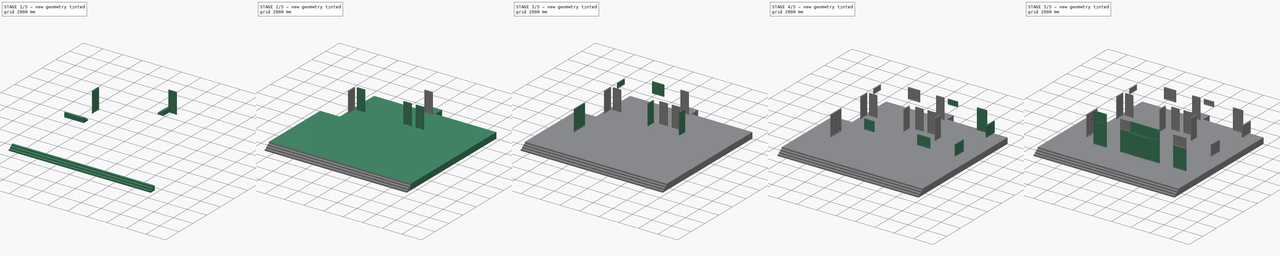
[diagram: build sequence overview — one tinted view per stage of 5, left to right]
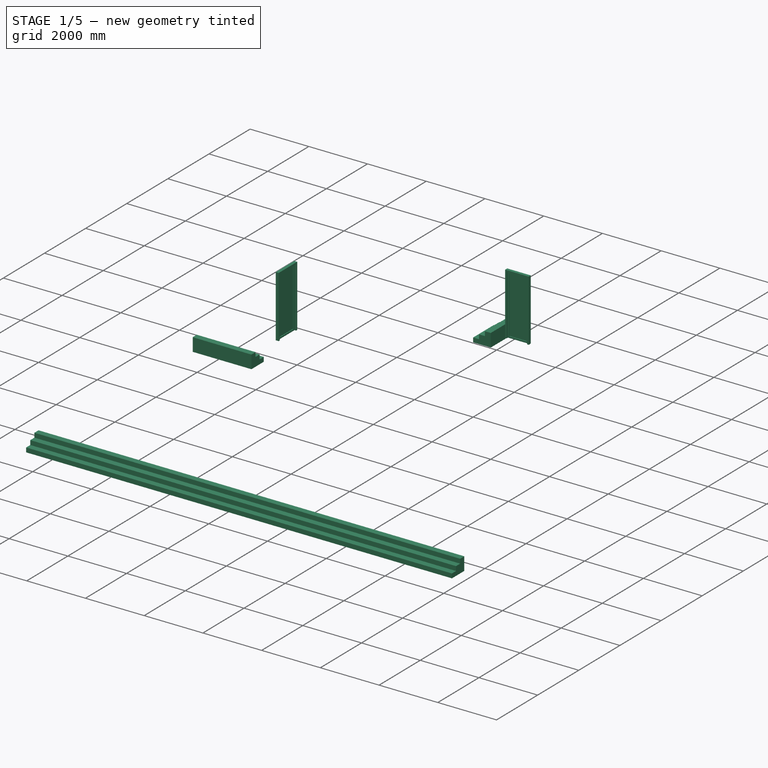
[diagram: stage 1 of 5 — iso view after this stage's code; geometry added in this stage tinted green]
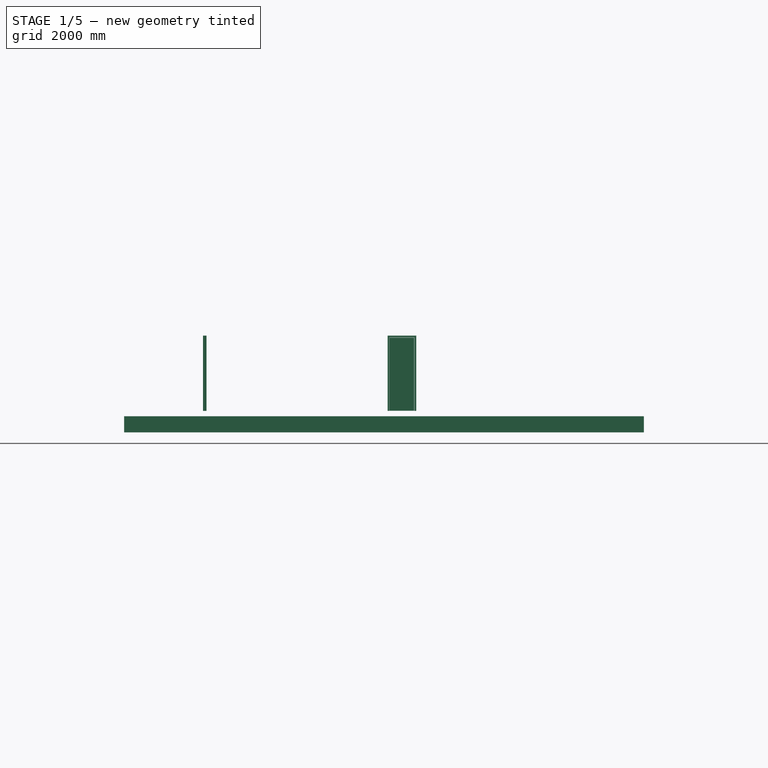
[diagram: stage 1 of 5 — front view after this stage's code; geometry added in this stage tinted green]
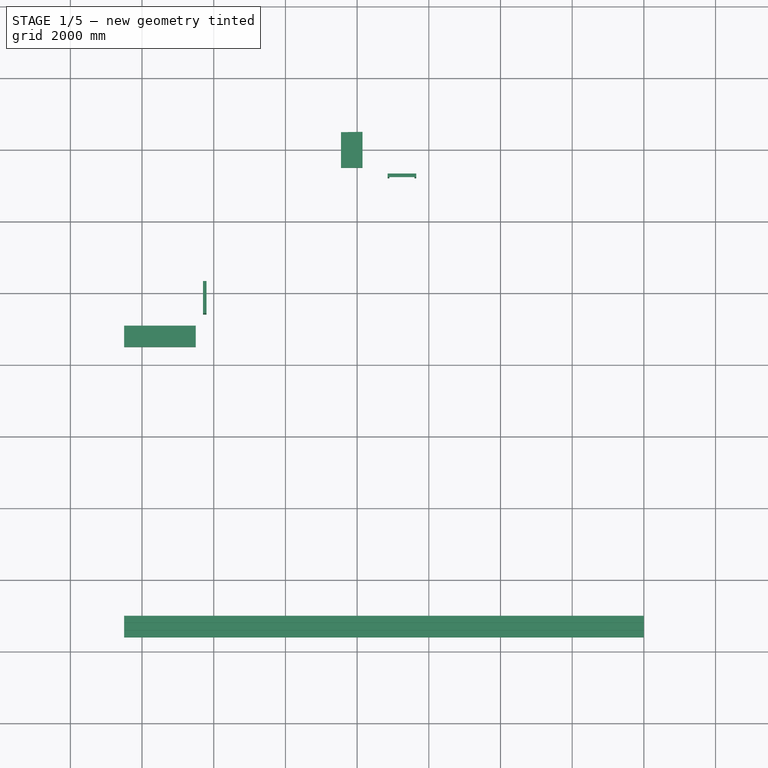
[diagram: stage 1 of 5 — top view after this stage's code; geometry added in this stage tinted green]
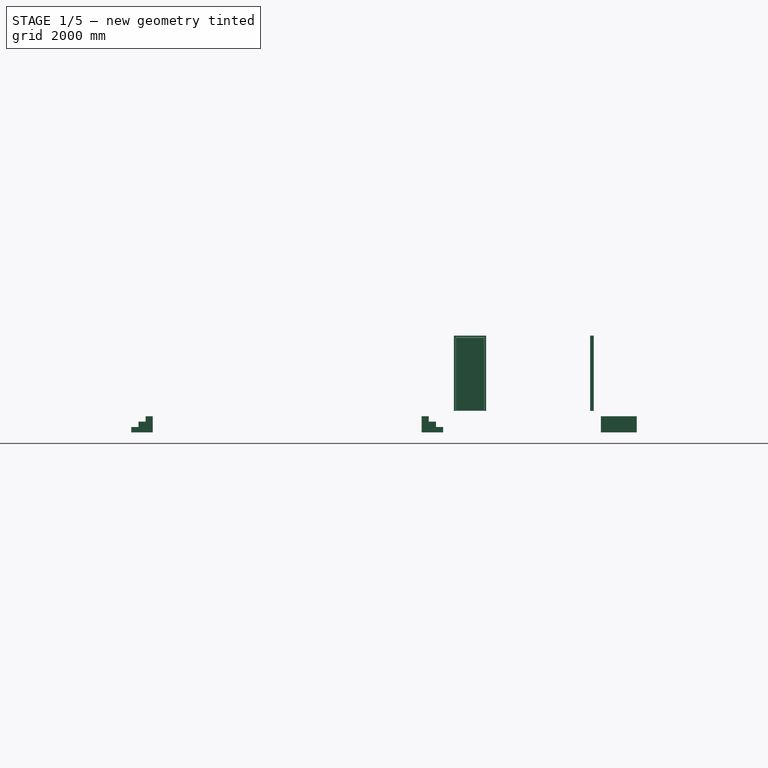
[diagram: stage 1 of 5 — right view after this stage's code; geometry added in this stage tinted green]
FCSTD DOCUMENT  (FreeCAD 1.0R39109 (Git))
Label: House
License: All rights reserved
LicenseURL: https://en.wikipedia.org/wiki/All_rights_reserved
objects: Part::FeaturePython×35, Sketcher::SketchObject×26, TechDraw::DrawViewDimension×12, TechDraw::DrawGeomHatch×7, App::DocumentObjectGroup×5, TechDraw::DrawProjGroupItem×5, TechDraw::DrawSVGTemplate×3, TechDraw::DrawPage×3, App::GeometryPython×2, App::FeaturePython×1, Part::Part2DObjectPython×1
note: 114 computed .brp shape members not serialized (recipe doc carries the construction recipe); baked Part::Feature solids carry a one-line shape summary decoded from their .brp

FEATURE [Sketcher::SketchObject] Sketch001  label="S EXT WALL"
  ArcFitTolerance = 1e-06
  FullyConstrained = true
  MakeInternals = false
  sketch-geometry (36):
    g0: LineSegment [constr] StartX=0 StartY=0 StartZ=0 EndX=0 EndY=9500 EndZ=0
    g1: LineSegment [constr] StartX=0 StartY=9500 StartZ=0 EndX=-12500 EndY=9500 EndZ=0
    g2: LineSegment [constr] StartX=-12500 StartY=9500 StartZ=0 EndX=-12500 EndY=0 EndZ=0
    g3: LineSegment [constr] StartX=-12500 StartY=0 StartZ=0 EndX=0 EndY=0 EndZ=0
    g4: LineSegment StartX=-300 StartY=300 StartZ=0 EndX=-300 EndY=9200 EndZ=0
    g5: LineSegment StartX=-300 StartY=9200 StartZ=0 EndX=-12200 EndY=9200 EndZ=0
    g6: LineSegment StartX=-12200 StartY=9200 StartZ=0 EndX=-12200 EndY=300 EndZ=0
    g7: LineSegment StartX=-12200 StartY=300 StartZ=0 EndX=-300 EndY=300 EndZ=0
    g8: LineSegment [constr] StartX=-300 StartY=4750 StartZ=0 EndX=0 EndY=4750 EndZ=0
    g9: LineSegment [constr] StartX=-6250 StartY=9200 StartZ=0 EndX=-6250 EndY=9500 EndZ=0
    g10: LineSegment [constr] StartX=-12200 StartY=4750 StartZ=0 EndX=-12500 EndY=4750 EndZ=0
    g11: LineSegment [constr] StartX=-6250 StartY=300 StartZ=0 EndX=-6250 EndY=0 EndZ=0
    g12: GeomPoint X=-11000 Y=300 Z=0
    g13: GeomPoint X=-9700 Y=300 Z=0
    g14: GeomPoint X=-8250 Y=300 Z=0
    g15: GeomPoint X=-4250 Y=300 Z=0
    g16: GeomPoint X=-2800 Y=300 Z=0
    g17: GeomPoint X=-1500 Y=300 Z=0
    g18: GeomPoint X=-300 Y=2150 Z=0
    g19: GeomPoint X=-300 Y=3350 Z=0
    g20: GeomPoint X=-300 Y=6700 Z=0
    g21: GeomPoint X=-300 Y=7900 Z=0
    g22: GeomPoint X=-1950 Y=9200 Z=0
    g23: GeomPoint X=-2950 Y=9200 Z=0
    g24: GeomPoint X=-4950 Y=9200 Z=0
    g25: GeomPoint X=-5950 Y=9200 Z=0
    g26: GeomPoint X=-6350 Y=9200 Z=0
    g27: GeomPoint X=-7150 Y=9200 Z=0
    g28: GeomPoint X=-8850 Y=9200 Z=0
    g29: GeomPoint X=-10050 Y=9200 Z=0
    g30: GeomPoint X=-12200 Y=8300 Z=0
    g31: GeomPoint X=-12200 Y=7300 Z=0
    g32: GeomPoint X=-12200 Y=6300 Z=0
    g33: GeomPoint X=-12200 Y=5400 Z=0
    g34: GeomPoint X=-12200 Y=2500 Z=0
    g35: GeomPoint X=-12200 Y=1000 Z=0
  constraints (87):
    c: Coincident(g0,g1)
    c: Coincident(g1,g2)
    c: Coincident(g2,g3)
    c: Coincident(g3,g0)
    c: Vertical(g0)
    c: Vertical(g2)
    c: Horizontal(g1)
    c: Horizontal(g3)
    c: Distance(g0,g2) = 12500
    c: Distance(g1,g3) = 9500
    c: Coincident(g0,g-1)
    c: Coincident(g4,g5)
    c: Coincident(g4,g7)
    c: Coincident(g5,g6)
    c: Coincident(g6,g7)
    c: Perpendicular(g8,g4)
    c: PointOnObject(g8,g4)
    c: Perpendicular(g9,g5)
    c: PointOnObject(g9,g5)
    c: Perpendicular(g10,g6)
    c: PointOnObject(g10,g6)
    c: Perpendicular(g11,g7)
    c: PointOnObject(g11,g7)
    c: Parallel(g7,g3)
    c: Parallel(g4,g0)
    c: Parallel(g5,g1)
    c: Equal(g9,g8)
    c: Parallel(g6,g2)
    c: Equal(g10,g8)
    c: Equal(g11,g8)
    c: Distance(g8) = 300
    c: Symmetric(g1,g1,g9)
    c: Symmetric(g2,g2,g10)
    c: Symmetric(g3,g3,g11)
    c: Symmetric(g0,g0,g8)
    c: PointOnObject(g12,g7)
    c: PointOnObject(g13,g7)
    c: PointOnObject(g14,g7)
    c: PointOnObject(g16,g7)
    c: PointOnObject(g17,g7)
    c: Symmetric(g15,g14,g11)
    c: DistanceX(g14,g15) = 4000
    c: DistanceX(g13,g14) = 1450
    c: DistanceX(g15,g16) = 1450
    c: DistanceX(g12,g13) = 1300
    c: DistanceX(g16,g17) = 1300
    c: DistanceX(g6,g12) = 1200
    c: DistanceX(g17,g4) = 1200
    c: PointOnObject(g18,g4)
    c: PointOnObject(g19,g4)
    c: PointOnObject(g20,g4)
    c: PointOnObject(g21,g4)
    c: DistanceY(g18,g19) = 1200
    c: DistanceY(g20,g21) = 1200
    c: DistanceY(g21,g4) = 1300
    c: DistanceY(g4,g18) = 1850
    c: DistanceY(g19,g20) = 3350
    c: PointOnObject(g22,g5)
    c: PointOnObject(g23,g5)
    c: PointOnObject(g24,g5)
    c: PointOnObject(g25,g5)
    c: PointOnObject(g26,g5)
    c: PointOnObject(g27,g5)
    c: PointOnObject(g28,g5)
    c: PointOnObject(g29,g5)
    c: DistanceX(g23,g22) = 1000
    c: DistanceX(g25,g24) = 1000
    c: DistanceX(g27,g26) = 800
    c: DistanceX(g29,g28) = 1200
    c: DistanceX(g22,g4) = 1650
    c: DistanceX(g5,g29) = 2150
    c: DistanceX(g26,g25) = 400
    c: DistanceX(g24,g23) = 2000
    c: DistanceX(g28,g27) = 1700
    c: PointOnObject(g30,g6)
    c: PointOnObject(g31,g6)
    c: PointOnObject(g32,g6)
    c: PointOnObject(g33,g6)
    c: PointOnObject(g34,g6)
    c: PointOnObject(g35,g6)
    c: DistanceY(g31,g30) = 1000
    c: DistanceY(g33,g32) = 900
    c: DistanceY(g35,g34) = 1500
    c: DistanceY(g32,g31) = 1000
    c: DistanceY(g34,g33) = 2900
    c: DistanceY(g6,g35) = 700
    c: DistanceY(g30,g5) = 900
FEATURE [Sketcher::SketchObject] Sketch002  label="S INT WALL"
  ArcFitTolerance = 1e-06
  FullyConstrained = true
  MakeInternals = false
  expr: Constraints[30] = Sketch001.Constraints[30]
  expr: Constraints[8] = Sketch001.Constraints[8]
  expr: Constraints[9] = Sketch001.Constraints[9]
  sketch-geometry (19):
    g0: LineSegment [constr] StartX=0 StartY=0 StartZ=0 EndX=0 EndY=9500 EndZ=0
    g1: LineSegment [constr] StartX=0 StartY=9500 StartZ=0 EndX=-12500 EndY=9500 EndZ=0
    g2: LineSegment [constr] StartX=-12500 StartY=9500 StartZ=0 EndX=-12500 EndY=0 EndZ=0
    g3: LineSegment [constr] StartX=-12500 StartY=0 StartZ=0 EndX=0 EndY=0 EndZ=0
    g4: LineSegment [constr] StartX=-300 StartY=300 StartZ=0 EndX=-300 EndY=9200 EndZ=0
    g5: LineSegment [constr] StartX=-300 StartY=9200 StartZ=0 EndX=-12200 EndY=9200 EndZ=0
    g6: LineSegment [constr] StartX=-12200 StartY=9200 StartZ=0 EndX=-12200 EndY=300 EndZ=0
    g7: LineSegment [constr] StartX=-12200 StartY=300 StartZ=0 EndX=-300 EndY=300 EndZ=0
    g8: LineSegment [constr] StartX=-300 StartY=4750 StartZ=0 EndX=0 EndY=4750 EndZ=0
    g9: LineSegment [constr] StartX=-6250 StartY=9200 StartZ=0 EndX=-6250 EndY=9500 EndZ=0
    g10: LineSegment [constr] StartX=-12200 StartY=4750 StartZ=0 EndX=-12500 EndY=4750 EndZ=0
    g11: LineSegment [constr] StartX=-6250 StartY=300 StartZ=0 EndX=-6250 EndY=0 EndZ=0
    g12: LineSegment StartX=-12200 StartY=5300 StartZ=0 EndX=-300 EndY=5300 EndZ=0
    g13: LineSegment StartX=-4650 StartY=9200 StartZ=0 EndX=-4650 EndY=5300 EndZ=0
    g14: LineSegment StartX=-7850 StartY=9200 StartZ=0 EndX=-7850 EndY=5300 EndZ=0
    g15: LineSegment StartX=-7850 StartY=6400 StartZ=0 EndX=-4650 EndY=6400 EndZ=0
    g16: LineSegment StartX=-6250 StartY=9200 StartZ=0 EndX=-6250 EndY=6400 EndZ=0
    g17: LineSegment StartX=-11050 StartY=9200 StartZ=0 EndX=-11050 EndY=5300 EndZ=0
    g18: LineSegment StartX=-12200 StartY=6400 StartZ=0 EndX=-11050 EndY=6400 EndZ=0
  constraints (63):
    c: Coincident(g0,g1)
    c: Coincident(g1,g2)
    c: Coincident(g2,g3)
    c: Coincident(g3,g0)
    c: Vertical(g0)
    c: Vertical(g2)
    c: Horizontal(g1)
    c: Horizontal(g3)
    c: Distance(g0,g2) = 12500
    c: Distance(g1,g3) = 9500
    c: Coincident(g0,g-1)
    c: Coincident(g4,g5)
    c: Coincident(g4,g7)
    c: Coincident(g5,g6)
    c: Coincident(g6,g7)
    c: Perpendicular(g8,g4)
    c: PointOnObject(g8,g4)
    c: Perpendicular(g9,g5)
    c: PointOnObject(g9,g5)
    c: Perpendicular(g10,g6)
    c: PointOnObject(g10,g6)
    c: Perpendicular(g11,g7)
    c: PointOnObject(g11,g7)
    c: Parallel(g7,g3)
    c: Parallel(g4,g0)
    c: Parallel(g5,g1)
    c: Equal(g9,g8)
    c: Parallel(g6,g2)
    c: Equal(g10,g8)
    c: Equal(g11,g8)
    c: Distance(g8) = 300
    c: Symmetric(g1,g1,g9)
    c: Symmetric(g2,g2,g10)
    c: Symmetric(g3,g3,g11)
    c: Symmetric(g0,g0,g8)
    c: PointOnObject(g12,g6)
    c: PointOnObject(g12,g4)
    c: Horizontal(g12)
    c: Distance(g4,g12) = 5000
    c: PointOnObject(g13,g5)
    c: PointOnObject(g13,g12)
    c: Vertical(g13)
    c: PointOnObject(g14,g5)
    c: PointOnObject(g14,g12)
    c: Vertical(g14)
    c: PointOnObject(g15,g14)
    c: Horizontal(g15)
    c: Coincident(g16,g9)
    c: Symmetric(g15,g15,g16)
    c: Symmetric(g14,g13,g16)
    c: Distance(g13,g16) = 1600
    c: PointOnObject(g17,g5)
    c: PointOnObject(g17,g12)
    c: Vertical(g17)
    c: PointOnObject(g18,g6)
    c: PointOnObject(g18,g17)
    c: Horizontal(g18)
    c: Distance(g13,g15) = 1100
    c: Horizontal(g18,g15)
    c: Distance(g5,g17) = 1150
    c: Distance(g4,g13) = 4350
    c: Distance(g14,g17) = 3200
    c: Distance(g9,g14) = 1600
FEATURE [Sketcher::SketchObject] Sketch003
  ArcFitTolerance = 1e-06
  FullyConstrained = true
  MakeInternals = false
  Placement = pos=(-9700,300,0) rot=(0,0.707107,0.707107;3.14159rad)
  sketch-geometry (8):
    g0: LineSegment StartX=0 StartY=0 StartZ=0 EndX=1300 EndY=0 EndZ=0
    g1: LineSegment StartX=1300 StartY=0 StartZ=0 EndX=1300 EndY=2100 EndZ=0
    g2: LineSegment StartX=1300 StartY=2100 StartZ=0 EndX=0 EndY=2100 EndZ=0
    g3: LineSegment StartX=0 StartY=2100 StartZ=0 EndX=0 EndY=0 EndZ=0
    g4: LineSegment StartX=50 StartY=50 StartZ=0 EndX=1250 EndY=50 EndZ=0
    g5: LineSegment StartX=1250 StartY=50 StartZ=0 EndX=1250 EndY=2050 EndZ=0
    g6: LineSegment StartX=1250 StartY=2050 StartZ=0 EndX=50 EndY=2050 EndZ=0
    g7: LineSegment StartX=50 StartY=2050 StartZ=0 EndX=50 EndY=50 EndZ=0
  constraints (23):
    c: Coincident(g0,g1)
    c: Coincident(g1,g2)
    c: Coincident(g2,g3)
    c: Coincident(g3,g0)
    c: Horizontal(g0)
    c: Horizontal(g2)
    c: Vertical(g1)
    c: Vertical(g3)
    c: Coincident(g4,g5)
    c: Coincident(g5,g6)
    c: Coincident(g6,g7)
    c: Coincident(g7,g4)
    c: Horizontal(g4)
    c: Horizontal(g6)
    c: Vertical(g5)
    c: Vertical(g7)
    c: DistanceY(g1) = 2100  'Height'
    c: DistanceX(g0) = 1300  'Width'
    c: DistanceY(g6,g2) = 50  'Frame1'
    c: DistanceX(g2,g6) = 50  'Frame2'
    c: DistanceX(g4,g0) = 50  'Frame3'
    c: DistanceY(g0,g4) = 50  'Frame4'
    c: Coincident(g0,g-1)
FEATURE [Sketcher::SketchObject] Sketch004
  ArcFitTolerance = 1e-06
  FullyConstrained = true
  MakeInternals = false
  Placement = pos=(-4250,300,0) rot=(0,0.707107,0.707107;3.14159rad)
  sketch-geometry (40):
    g0: LineSegment StartX=0 StartY=0 StartZ=0 EndX=4000 EndY=0 EndZ=0
    g1: LineSegment StartX=4000 StartY=0 StartZ=0 EndX=4000 EndY=2100 EndZ=0
    g2: LineSegment StartX=4000 StartY=2100 StartZ=0 EndX=0 EndY=2100 EndZ=0
    g3: LineSegment StartX=0 StartY=2100 StartZ=0 EndX=0 EndY=0 EndZ=0
    g4: LineSegment StartX=50 StartY=50 StartZ=0 EndX=3950 EndY=50 EndZ=0
    g5: LineSegment StartX=3950 StartY=50 StartZ=0 EndX=3950 EndY=2050 EndZ=0
    g6: LineSegment StartX=3950 StartY=2050 StartZ=0 EndX=50 EndY=2050 EndZ=0
    g7: LineSegment StartX=50 StartY=2050 StartZ=0 EndX=50 EndY=50 EndZ=0
    g8: LineSegment StartX=55 StartY=55 StartZ=0 EndX=1023.75 EndY=55 EndZ=0
    g9: LineSegment StartX=1023.75 StartY=55 StartZ=0 EndX=1023.75 EndY=2045 EndZ=0
    g10: LineSegment StartX=1023.75 StartY=2045 StartZ=0 EndX=55 EndY=2045 EndZ=0
    g11: LineSegment StartX=55 StartY=2045 StartZ=0 EndX=55 EndY=55 EndZ=0
    g12: LineSegment StartX=105 StartY=105 StartZ=0 EndX=973.75 EndY=105 EndZ=0
    g13: LineSegment StartX=973.75 StartY=105 StartZ=0 EndX=973.75 EndY=1995 EndZ=0
    g14: LineSegment StartX=973.75 StartY=1995 StartZ=0 EndX=105 EndY=1995 EndZ=0
    g15: LineSegment StartX=105 StartY=1995 StartZ=0 EndX=105 EndY=105 EndZ=0
    g16: LineSegment StartX=1028.75 StartY=55 StartZ=0 EndX=1997.5 EndY=55 EndZ=0
    g17: LineSegment StartX=1997.5 StartY=55 StartZ=0 EndX=1997.5 EndY=2045 EndZ=0
    g18: LineSegment StartX=1997.5 StartY=2045 StartZ=0 EndX=1028.75 EndY=2045 EndZ=0
    g19: LineSegment StartX=1028.75 StartY=2045 StartZ=0 EndX=1028.75 EndY=55 EndZ=0
    g20: LineSegment StartX=1078.75 StartY=105 StartZ=0 EndX=1947.5 EndY=105 EndZ=0
    g21: LineSegment StartX=1947.5 StartY=105 StartZ=0 EndX=1947.5 EndY=1995 EndZ=0
    g22: LineSegment StartX=1947.5 StartY=1995 StartZ=0 EndX=1078.75 EndY=1995 EndZ=0
    g23: LineSegment StartX=1078.75 StartY=1995 StartZ=0 EndX=1078.75 EndY=105 EndZ=0
    g24: LineSegment StartX=2002.5 StartY=55 StartZ=0 EndX=2971.25 EndY=55 EndZ=0
    g25: LineSegment StartX=2971.25 StartY=55 StartZ=0 EndX=2971.25 EndY=2045 EndZ=0
    g26: LineSegment StartX=2971.25 StartY=2045 StartZ=0 EndX=2002.5 EndY=2045 EndZ=0
    g27: LineSegment StartX=2002.5 StartY=2045 StartZ=0 EndX=2002.5 EndY=55 EndZ=0
    g28: LineSegment StartX=2052.5 StartY=105 StartZ=0 EndX=2921.25 EndY=105 EndZ=0
    g29: LineSegment StartX=2921.25 StartY=105 StartZ=0 EndX=2921.25 EndY=1995 EndZ=0
    g30: LineSegment StartX=2921.25 StartY=1995 StartZ=0 EndX=2052.5 EndY=1995 EndZ=0
    g31: LineSegment StartX=2052.5 StartY=1995 StartZ=0 EndX=2052.5 EndY=105 EndZ=0
    g32: LineSegment StartX=2976.25 StartY=55 StartZ=0 EndX=3945 EndY=55 EndZ=0
    g33: LineSegment StartX=3945 StartY=55 StartZ=0 EndX=3945 EndY=2045 EndZ=0
    g34: LineSegment StartX=3945 StartY=2045 StartZ=0 EndX=2976.25 EndY=2045 EndZ=0
    g35: LineSegment StartX=2976.25 StartY=2045 StartZ=0 EndX=2976.25 EndY=55 EndZ=0
    g36: LineSegment StartX=3026.25 StartY=105 StartZ=0 EndX=3895 EndY=105 EndZ=0
    g37: LineSegment StartX=3895 StartY=105 StartZ=0 EndX=3895 EndY=1995 EndZ=0
    g38: LineSegment StartX=3895 StartY=1995 StartZ=0 EndX=3026.25 EndY=1995 EndZ=0
    g39: LineSegment StartX=3026.25 StartY=1995 StartZ=0 EndX=3026.25 EndY=105 EndZ=0
  constraints (119):
    c: Coincident(g0,g1)
    c: Coincident(g1,g2)
    c: Coincident(g2,g3)
    c: Coincident(g3,g0)
    c: Horizontal(g0)
    c: Horizontal(g2)
    c: Vertical(g1)
    c: Vertical(g3)
    c: Coincident(g4,g5)
    c: Coincident(g5,g6)
    c: Coincident(g6,g7)
    c: Coincident(g7,g4)
    c: Horizontal(g4)
    c: Horizontal(g6)
    c: Vertical(g5)
    c: Vertical(g7)
    c: DistanceY(g1) = 2100  'Height'
    c: DistanceX(g0) = 4000  'Width'
    c: DistanceY(g6,g2) = 50  'Frame1'
    c: DistanceX(g2,g6) = 50  'Frame2'
    c: DistanceX(g4,g0) = 50  'Frame3'
    c: DistanceY(g0,g4) = 50  'Frame4'
    c: Coincident(g0,g-1)
    c: Coincident(g8,g9)
    c: Coincident(g9,g10)
    c: Coincident(g10,g11)
    c: Coincident(g11,g8)
    c: Horizontal(g8)
    c: Horizontal(g10)
    c: Vertical(g9)
    c: Vertical(g11)
    c: Coincident(g12,g13)
    c: Coincident(g13,g14)
    c: Coincident(g14,g15)
    c: Coincident(g15,g12)
    c: Horizontal(g12)
    c: Horizontal(g14)
    c: Vertical(g13)
    c: Vertical(g15)
    c: Coincident(g16,g17)
    c: Coincident(g17,g18)
    c: Coincident(g18,g19)
    c: Coincident(g19,g16)
    c: Horizontal(g16)
    c: Horizontal(g18)
    c: Vertical(g17)
    c: Vertical(g19)
    c: Coincident(g20,g21)
    c: Coincident(g21,g22)
    c: Coincident(g22,g23)
    c: Coincident(g23,g20)
    c: Horizontal(g20)
    c: Horizontal(g22)
    c: Vertical(g21)
    c: Vertical(g23)
    c: Coincident(g24,g25)
    c: Coincident(g25,g26)
    c: Coincident(g26,g27)
    c: Coincident(g27,g24)
    c: Horizontal(g24)
    c: Horizontal(g26)
    c: Vertical(g25)
    c: Vertical(g27)
    c: Coincident(g28,g29)
    c: Coincident(g29,g30)
    c: Coincident(g30,g31)
    c: Coincident(g31,g28)
    c: Horizontal(g28)
    c: Horizontal(g30)
    c: Vertical(g29)
    c: Vertical(g31)
    c: Coincident(g32,g33)
    c: Coincident(g33,g34)
    c: Coincident(g34,g35)
    c: Coincident(g35,g32)
    c: Horizontal(g32)
    c: Horizontal(g34)
    c: Vertical(g33)
    c: Vertical(g35)
    c: Coincident(g36,g37)
    c: Coincident(g37,g38)
    c: Coincident(g38,g39)
    c: Coincident(g39,g36)
    c: Horizontal(g36)
    c: Horizontal(g38)
    c: Vertical(g37)
    c: Vertical(g39)
    c: DistanceX(g4,g8) = 5
    c: DistanceX(g8,g16) = 5
    c: DistanceX(g17,g27) = 5
    c: DistanceX(g24,g32) = 5
    c: DistanceX(g32,g4) = 5
    c: DistanceY(g4,g8) = 5
    c: DistanceY(g10,g6) = 5
    c: DistanceY(g17,g26) = 0
    c: DistanceY(g25,g34) = 0
    c: DistanceY(g8,g16) = 0
    c: DistanceY(g9,g18) = 0
    c: DistanceY(g16,g24) = 0
    c: DistanceY(g24,g32) = 0
    c: DistanceX(g8,g12) = 50  'Frame5'
    c: DistanceY(g8,g12) = 50  'Frame6'
    c: DistanceX(g13,g9) = 50  'Frame7'
    c: DistanceY(g13,g9) = 50  'Frame8'
    c: DistanceX(g16,g20) = 50  'Frame9'
    c: DistanceY(g16,g20) = 50  'Frame10'
    c: DistanceX(g21,g17) = 50  'Frame11'
    c: DistanceY(g21,g17) = 50  'Frame12'
    c: DistanceX(g24,g28) = 50  'Frame13'
    c: DistanceY(g24,g28) = 50  'Frame14'
    c: DistanceX(g29,g25) = 50  'Frame15'
    c: DistanceY(g29,g25) = 50  'Frame16'
    c: DistanceX(g32,g36) = 50  'Frame17'
    c: DistanceY(g32,g36) = 50  'Frame18'
    c: DistanceX(g37,g33) = 50  'Frame19'
    c: DistanceY(g37,g33) = 50  'Frame20'
    c: Equal(g14,g22)
    c: Equal(g22,g30)
    c: Equal(g30,g38)
FEATURE [Sketcher::SketchObject] Sketch005
  ArcFitTolerance = 1e-06
  FullyConstrained = true
  MakeInternals = false
  Placement = pos=(-9700,300,2100) rot=(0,0.707107,0.707107;3.14159rad)
  sketch-geometry (8):
    g0: LineSegment StartX=0 StartY=0 StartZ=0 EndX=1300 EndY=0 EndZ=0
    g1: LineSegment StartX=1300 StartY=0 StartZ=0 EndX=1300 EndY=1000 EndZ=0
    g2: LineSegment StartX=1300 StartY=1000 StartZ=0 EndX=0 EndY=1000 EndZ=0
    g3: LineSegment StartX=0 StartY=1000 StartZ=0 EndX=0 EndY=0 EndZ=0
    g4: LineSegment StartX=50 StartY=50 StartZ=0 EndX=1250 EndY=50 EndZ=0
    g5: LineSegment StartX=1250 StartY=50 StartZ=0 EndX=1250 EndY=950 EndZ=0
    g6: LineSegment StartX=1250 StartY=950 StartZ=0 EndX=50 EndY=950 EndZ=0
    g7: LineSegment StartX=50 StartY=950 StartZ=0 EndX=50 EndY=50 EndZ=0
  constraints (23):
    c: Coincident(g0,g1)
    c: Coincident(g1,g2)
    c: Coincident(g2,g3)
    c: Coincident(g3,g0)
    c: Horizontal(g0)
    c: Horizontal(g2)
    c: Vertical(g1)
    c: Vertical(g3)
    c: Coincident(g4,g5)
    c: Coincident(g5,g6)
    c: Coincident(g6,g7)
    c: Coincident(g7,g4)
    c: Horizontal(g4)
    c: Horizontal(g6)
    c: Vertical(g5)
    c: Vertical(g7)
    c: DistanceY(g1) = 1000  'Height'
    c: DistanceX(g0) = 1300  'Width'
    c: DistanceY(g6,g2) = 50  'Frame1'
    c: DistanceX(g2,g6) = 50  'Frame2'
    c: DistanceX(g4,g0) = 50  'Frame3'
    c: DistanceY(g0,g4) = 50  'Frame4'
    c: Coincident(g0,g-1)
FEATURE [Sketcher::SketchObject] Sketch006
  ArcFitTolerance = 1e-06
  FullyConstrained = true
  MakeInternals = false
  Placement = pos=(-4250,300,2100) rot=(0,0.707107,0.707107;3.14159rad)
  sketch-geometry (8):
    g0: LineSegment StartX=0 StartY=0 StartZ=0 EndX=1000 EndY=0 EndZ=0
    g1: LineSegment StartX=1000 StartY=0 StartZ=0 EndX=1000 EndY=1000 EndZ=0
    g2: LineSegment StartX=1000 StartY=1000 StartZ=0 EndX=0 EndY=1000 EndZ=0
    g3: LineSegment StartX=0 StartY=1000 StartZ=0 EndX=0 EndY=0 EndZ=0
    g4: LineSegment StartX=50 StartY=50 StartZ=0 EndX=950 EndY=50 EndZ=0
    g5: LineSegment StartX=950 StartY=50 StartZ=0 EndX=950 EndY=950 EndZ=0
    g6: LineSegment StartX=950 StartY=950 StartZ=0 EndX=50 EndY=950 EndZ=0
    g7: LineSegment StartX=50 StartY=950 StartZ=0 EndX=50 EndY=50 EndZ=0
  constraints (23):
    c: Coincident(g0,g1)
    c: Coincident(g1,g2)
    c: Coincident(g2,g3)
    c: Coincident(g3,g0)
    c: Horizontal(g0)
    c: Horizontal(g2)
    c: Vertical(g1)
    c: Vertical(g3)
    c: Coincident(g4,g5)
    c: Coincident(g5,g6)
    c: Coincident(g6,g7)
    c: Coincident(g7,g4)
    c: Horizontal(g4)
    c: Horizontal(g6)
    c: Vertical(g5)
    c: Vertical(g7)
    c: DistanceY(g1) = 1000  'Height'
    c: DistanceX(g0) = 1000  'Width'
    c: DistanceY(g6,g2) = 50  'Frame1'
    c: DistanceX(g2,g6) = 50  'Frame2'
    c: DistanceX(g4,g0) = 50  'Frame3'
    c: DistanceY(g0,g4) = 50  'Frame4'
    c: Coincident(g0,g-1)
FEATURE [Sketcher::SketchObject] Sketch008
  ArcFitTolerance = 1e-06
  FullyConstrained = true
  MakeInternals = false
  Placement = pos=(-300,3350,0) rot=(0.57735,-0.57735,-0.57735;2.0944rad)
  sketch-geometry (24):
    g0: LineSegment StartX=0 StartY=0 StartZ=0 EndX=1200 EndY=0 EndZ=0
    g1: LineSegment StartX=1200 StartY=0 StartZ=0 EndX=1200 EndY=1100 EndZ=0
    g2: LineSegment StartX=1200 StartY=1100 StartZ=0 EndX=0 EndY=1100 EndZ=0
    g3: LineSegment StartX=0 StartY=1100 StartZ=0 EndX=0 EndY=0 EndZ=0
    g4: LineSegment StartX=50 StartY=50 StartZ=0 EndX=1150 EndY=50 EndZ=0
    g5: LineSegment StartX=1150 StartY=50 StartZ=0 EndX=1150 EndY=1050 EndZ=0
    g6: LineSegment StartX=1150 StartY=1050 StartZ=0 EndX=50 EndY=1050 EndZ=0
    g7: LineSegment StartX=50 StartY=1050 StartZ=0 EndX=50 EndY=50 EndZ=0
    g8: LineSegment StartX=55 StartY=55 StartZ=0 EndX=597.5 EndY=55 EndZ=0
    g9: LineSegment StartX=597.5 StartY=55 StartZ=0 EndX=597.5 EndY=1045 EndZ=0
    g10: LineSegment StartX=597.5 StartY=1045 StartZ=0 EndX=55 EndY=1045 EndZ=0
    g11: LineSegment StartX=55 StartY=1045 StartZ=0 EndX=55 EndY=55 EndZ=0
    g12: LineSegment StartX=105 StartY=105 StartZ=0 EndX=547.5 EndY=105 EndZ=0
    g13: LineSegment StartX=547.5 StartY=105 StartZ=0 EndX=547.5 EndY=995 EndZ=0
    g14: LineSegment StartX=547.5 StartY=995 StartZ=0 EndX=105 EndY=995 EndZ=0
    g15: LineSegment StartX=105 StartY=995 StartZ=0 EndX=105 EndY=105 EndZ=0
    g16: LineSegment StartX=602.5 StartY=55 StartZ=0 EndX=1145 EndY=55 EndZ=0
    g17: LineSegment StartX=1145 StartY=55 StartZ=0 EndX=1145 EndY=1045 EndZ=0
    g18: LineSegment StartX=1145 StartY=1045 StartZ=0 EndX=602.5 EndY=1045 EndZ=0
    g19: LineSegment StartX=602.5 StartY=1045 StartZ=0 EndX=602.5 EndY=55 EndZ=0
    g20: LineSegment StartX=652.5 StartY=105 StartZ=0 EndX=1095 EndY=105 EndZ=0
    g21: LineSegment StartX=1095 StartY=105 StartZ=0 EndX=1095 EndY=995 EndZ=0
    g22: LineSegment StartX=1095 StartY=995 StartZ=0 EndX=652.5 EndY=995 EndZ=0
    g23: LineSegment StartX=652.5 StartY=995 StartZ=0 EndX=652.5 EndY=105 EndZ=0
  constraints (71):
    c: Coincident(g0,g1)
    c: Coincident(g1,g2)
    c: Coincident(g2,g3)
    c: Coincident(g3,g0)
    c: Horizontal(g0)
    c: Horizontal(g2)
    c: Vertical(g1)
    c: Vertical(g3)
    c: Coincident(g4,g5)
    c: Coincident(g5,g6)
    c: Coincident(g6,g7)
    c: Coincident(g7,g4)
    c: Horizontal(g4)
    c: Horizontal(g6)
    c: Vertical(g5)
    c: Vertical(g7)
    c: DistanceY(g1) = 1100  'Height'
    c: DistanceX(g0) = 1200  'Width'
    c: DistanceY(g6,g2) = 50  'Frame1'
    c: DistanceX(g2,g6) = 50  'Frame2'
    c: DistanceX(g4,g0) = 50  'Frame3'
    c: DistanceY(g0,g4) = 50  'Frame4'
    c: Coincident(g0,g-1)
    c: Coincident(g8,g9)
    c: Coincident(g9,g10)
    c: Coincident(g10,g11)
    c: Coincident(g11,g8)
    c: Horizontal(g8)
    c: Horizontal(g10)
    c: Vertical(g9)
    c: Vertical(g11)
    c: Coincident(g12,g13)
    c: Coincident(g13,g14)
    c: Coincident(g14,g15)
    c: Coincident(g15,g12)
    c: Horizontal(g12)
    c: Horizontal(g14)
    c: Vertical(g13)
    c: Vertical(g15)
    c: Coincident(g16,g17)
    c: Coincident(g17,g18)
    c: Coincident(g18,g19)
    c: Coincident(g19,g16)
    c: Horizontal(g16)
    c: Horizontal(g18)
    c: Vertical(g17)
    c: Vertical(g19)
    c: Coincident(g20,g21)
    c: Coincident(g21,g22)
    c: Coincident(g22,g23)
    c: Coincident(g23,g20)
    c: Horizontal(g20)
    c: Horizontal(g22)
    c: Vertical(g21)
    c: Vertical(g23)
    c: DistanceY(g8,g12) = 50  'Frame5'
    c: DistanceX(g8,g12) = 50  'Frame6'
    c: DistanceX(g21,g17) = 50  'Frame7'
    c: DistanceY(g21,g17) = 50  'Frame8'
    c: DistanceX(g16,g20) = 50  'Frame9'
    c: DistanceX(g14,g10) = 50  'Frame10'
    c: Equal(g22,g14)
    c: DistanceY(g8,g16) = 0
    c: DistanceY(g10,g18) = 0
    c: DistanceX(g4,g8) = 5
    c: DistanceY(g4,g8) = 5
    c: DistanceX(g6,g18) = -5
    c: DistanceY(g6,g18) = -5
    c: DistanceX(g9,g19) = 5
    c: PointOnObject(g13,g22)
    c: PointOnObject(g20,g12)
FEATURE [Sketcher::SketchObject] Sketch009
  ArcFitTolerance = 1e-06
  FullyConstrained = true
  MakeInternals = false
  Placement = pos=(-2950,9200,0) rot=(1,0,0;1.5708rad)
  sketch-geometry (8):
    g0: LineSegment StartX=0 StartY=0 StartZ=0 EndX=1000 EndY=0 EndZ=0
    g1: LineSegment StartX=1000 StartY=0 StartZ=0 EndX=1000 EndY=2100 EndZ=0
    g2: LineSegment StartX=1000 StartY=2100 StartZ=0 EndX=0 EndY=2100 EndZ=0
    g3: LineSegment StartX=0 StartY=2100 StartZ=0 EndX=0 EndY=0 EndZ=0
    g4: LineSegment StartX=50 StartY=50 StartZ=0 EndX=950 EndY=50 EndZ=0
    g5: LineSegment StartX=950 StartY=50 StartZ=0 EndX=950 EndY=2050 EndZ=0
    g6: LineSegment StartX=950 StartY=2050 StartZ=0 EndX=50 EndY=2050 EndZ=0
    g7: LineSegment StartX=50 StartY=2050 StartZ=0 EndX=50 EndY=50 EndZ=0
  constraints (23):
    c: Coincident(g0,g1)
    c: Coincident(g1,g2)
    c: Coincident(g2,g3)
    c: Coincident(g3,g0)
    c: Horizontal(g0)
    c: Horizontal(g2)
    c: Vertical(g1)
    c: Vertical(g3)
    c: Coincident(g4,g5)
    c: Coincident(g5,g6)
    c: Coincident(g6,g7)
    c: Coincident(g7,g4)
    c: Horizontal(g4)
    c: Horizontal(g6)
    c: Vertical(g5)
    c: Vertical(g7)
    c: DistanceY(g1) = 2100  'Height'
    c: DistanceX(g0) = 1000  'Width'
    c: DistanceY(g6,g2) = 50  'Frame1'
    c: DistanceX(g2,g6) = 50  'Frame2'
    c: DistanceX(g4,g0) = 50  'Frame3'
    c: DistanceY(g0,g4) = 50  'Frame4'
    c: Coincident(g0,g-1)
FEATURE [Sketcher::SketchObject] Sketch013
  ArcFitTolerance = 1e-06
  FullyConstrained = true
  MakeInternals = false
  Placement = pos=(-5950,9200,0) rot=(1,0,0;1.5708rad)
  sketch-geometry (8):
    g0: LineSegment StartX=0 StartY=0 StartZ=0 EndX=1000 EndY=0 EndZ=0
    g1: LineSegment StartX=1000 StartY=0 StartZ=0 EndX=1000 EndY=500 EndZ=0
    g2: LineSegment StartX=1000 StartY=500 StartZ=0 EndX=0 EndY=500 EndZ=0
    g3: LineSegment StartX=0 StartY=500 StartZ=0 EndX=0 EndY=0 EndZ=0
    g4: LineSegment StartX=50 StartY=50 StartZ=0 EndX=950 EndY=50 EndZ=0
    g5: LineSegment StartX=950 StartY=50 StartZ=0 EndX=950 EndY=450 EndZ=0
    g6: LineSegment StartX=950 StartY=450 StartZ=0 EndX=50 EndY=450 EndZ=0
    g7: LineSegment StartX=50 StartY=450 StartZ=0 EndX=50 EndY=50 EndZ=0
  constraints (23):
    c: Coincident(g0,g1)
    c: Coincident(g1,g2)
    c: Coincident(g2,g3)
    c: Coincident(g3,g0)
    c: Horizontal(g0)
    c: Horizontal(g2)
    c: Vertical(g1)
    c: Vertical(g3)
    c: Coincident(g4,g5)
    c: Coincident(g5,g6)
    c: Coincident(g6,g7)
    c: Coincident(g7,g4)
    c: Horizontal(g4)
    c: Horizontal(g6)
    c: Vertical(g5)
    c: Vertical(g7)
    c: DistanceY(g1) = 500  'Height'
    c: DistanceX(g0) = 1000  'Width'
    c: DistanceY(g6,g2) = 50  'Frame1'
    c: DistanceX(g2,g6) = 50  'Frame2'
    c: DistanceX(g4,g0) = 50  'Frame3'
    c: DistanceY(g0,g4) = 50  'Frame4'
    c: Coincident(g0,g-1)
FEATURE [Sketcher::SketchObject] Sketch016
  ArcFitTolerance = 1e-06
  FullyConstrained = true
  MakeInternals = false
  Placement = pos=(-10050,9200,0) rot=(1,0,0;1.5708rad)
  sketch-geometry (8):
    g0: LineSegment StartX=0 StartY=0 StartZ=0 EndX=1200 EndY=0 EndZ=0
    g1: LineSegment StartX=1200 StartY=0 StartZ=0 EndX=1200 EndY=1100 EndZ=0
    g2: LineSegment StartX=1200 StartY=1100 StartZ=0 EndX=0 EndY=1100 EndZ=0
    g3: LineSegment StartX=0 StartY=1100 StartZ=0 EndX=0 EndY=0 EndZ=0
    g4: LineSegment StartX=50 StartY=50 StartZ=0 EndX=1150 EndY=50 EndZ=0
    g5: LineSegment StartX=1150 StartY=50 StartZ=0 EndX=1150 EndY=1050 EndZ=0
    g6: LineSegment StartX=1150 StartY=1050 StartZ=0 EndX=50 EndY=1050 EndZ=0
    g7: LineSegment StartX=50 StartY=1050 StartZ=0 EndX=50 EndY=50 EndZ=0
  constraints (23):
    c: Coincident(g0,g1)
    c: Coincident(g1,g2)
    c: Coincident(g2,g3)
    c: Coincident(g3,g0)
    c: Horizontal(g0)
    c: Horizontal(g2)
    c: Vertical(g1)
    c: Vertical(g3)
    c: Coincident(g4,g5)
    c: Coincident(g5,g6)
    c: Coincident(g6,g7)
    c: Coincident(g7,g4)
    c: Horizontal(g4)
    c: Horizontal(g6)
    c: Vertical(g5)
    c: Vertical(g7)
    c: DistanceY(g1) = 1100  'Height'
    c: DistanceX(g0) = 1200  'Width'
    c: DistanceY(g6,g2) = 50  'Frame1'
    c: DistanceX(g2,g6) = 50  'Frame2'
    c: DistanceX(g4,g0) = 50  'Frame3'
    c: DistanceY(g0,g4) = 50  'Frame4'
    c: Coincident(g0,g-1)
FEATURE [Sketcher::SketchObject] Sketch017
  ArcFitTolerance = 1e-06
  FullyConstrained = true
  MakeInternals = false
  Placement = pos=(-12200,7300,0) rot=(0.57735,0.57735,0.57735;2.0944rad)
  sketch-geometry (8):
    g0: LineSegment StartX=0 StartY=0 StartZ=0 EndX=1000 EndY=0 EndZ=0
    g1: LineSegment StartX=1000 StartY=0 StartZ=0 EndX=1000 EndY=500 EndZ=0
    g2: LineSegment StartX=1000 StartY=500 StartZ=0 EndX=0 EndY=500 EndZ=0
    g3: LineSegment StartX=0 StartY=500 StartZ=0 EndX=0 EndY=0 EndZ=0
    g4: LineSegment StartX=50 StartY=50 StartZ=0 EndX=950 EndY=50 EndZ=0
    g5: LineSegment StartX=950 StartY=50 StartZ=0 EndX=950 EndY=450 EndZ=0
    g6: LineSegment StartX=950 StartY=450 StartZ=0 EndX=50 EndY=450 EndZ=0
    g7: LineSegment StartX=50 StartY=450 StartZ=0 EndX=50 EndY=50 EndZ=0
  constraints (23):
    c: Coincident(g0,g1)
    c: Coincident(g1,g2)
    c: Coincident(g2,g3)
    c: Coincident(g3,g0)
    c: Horizontal(g0)
    c: Horizontal(g2)
    c: Vertical(g1)
    c: Vertical(g3)
    c: Coincident(g4,g5)
    c: Coincident(g5,g6)
    c: Coincident(g6,g7)
    c: Coincident(g7,g4)
    c: Horizontal(g4)
    c: Horizontal(g6)
    c: Vertical(g5)
    c: Vertical(g7)
    c: DistanceY(g1) = 500  'Height'
    c: DistanceX(g0) = 1000  'Width'
    c: DistanceY(g6,g2) = 50  'Frame1'
    c: DistanceX(g2,g6) = 50  'Frame2'
    c: DistanceX(g4,g0) = 50  'Frame3'
    c: DistanceY(g0,g4) = 50  'Frame4'
    c: Coincident(g0,g-1)
FEATURE [Sketcher::SketchObject] Sketch019
  ArcFitTolerance = 1e-06
  FullyConstrained = true
  MakeInternals = false
  Placement = pos=(-12200,1000,0) rot=(0.57735,0.57735,0.57735;2.0944rad)
  sketch-geometry (16):
    g0: LineSegment StartX=0 StartY=0 StartZ=0 EndX=500 EndY=0 EndZ=0
    g1: LineSegment StartX=500 StartY=0 StartZ=0 EndX=500 EndY=2100 EndZ=0
    g2: LineSegment StartX=500 StartY=2100 StartZ=0 EndX=0 EndY=2100 EndZ=0
    g3: LineSegment StartX=0 StartY=2100 StartZ=0 EndX=0 EndY=0 EndZ=0
    g4: LineSegment StartX=50 StartY=50 StartZ=0 EndX=450 EndY=50 EndZ=0
    g5: LineSegment StartX=450 StartY=50 StartZ=0 EndX=450 EndY=2050 EndZ=0
    g6: LineSegment StartX=450 StartY=2050 StartZ=0 EndX=50 EndY=2050 EndZ=0
    g7: LineSegment StartX=50 StartY=2050 StartZ=0 EndX=50 EndY=50 EndZ=0
    g8: LineSegment StartX=55 StartY=55 StartZ=0 EndX=445 EndY=55 EndZ=0
    g9: LineSegment StartX=445 StartY=55 StartZ=0 EndX=445 EndY=2045 EndZ=0
    g10: LineSegment StartX=445 StartY=2045 StartZ=0 EndX=55 EndY=2045 EndZ=0
    g11: LineSegment StartX=55 StartY=2045 StartZ=0 EndX=55 EndY=55 EndZ=0
    g12: LineSegment StartX=105 StartY=105 StartZ=0 EndX=395 EndY=105 EndZ=0
    g13: LineSegment StartX=395 StartY=105 StartZ=0 EndX=395 EndY=1995 EndZ=0
    g14: LineSegment StartX=395 StartY=1995 StartZ=0 EndX=105 EndY=1995 EndZ=0
    g15: LineSegment StartX=105 StartY=1995 StartZ=0 EndX=105 EndY=105 EndZ=0
  constraints (47):
    c: Coincident(g0,g1)
    c: Coincident(g1,g2)
    c: Coincident(g2,g3)
    c: Coincident(g3,g0)
    c: Horizontal(g0)
    c: Horizontal(g2)
    c: Vertical(g1)
    c: Vertical(g3)
    c: Coincident(g4,g5)
    c: Coincident(g5,g6)
    c: Coincident(g6,g7)
    c: Coincident(g7,g4)
    c: Horizontal(g4)
    c: Horizontal(g6)
    c: Vertical(g5)
    c: Vertical(g7)
    c: DistanceY(g1) = 2100  'Height'
    c: DistanceX(g0) = 500  'Width'
    c: DistanceY(g6,g2) = 50  'Frame1'
    c: DistanceX(g2,g6) = 50  'Frame2'
    c: DistanceX(g4,g0) = 50  'Frame3'
    c: DistanceY(g0,g4) = 50  'Frame4'
    c: Coincident(g0,g-1)
    c: Coincident(g8,g9)
    c: Coincident(g9,g10)
    c: Coincident(g10,g11)
    c: Coincident(g11,g8)
    c: Horizontal(g8)
    c: Horizontal(g10)
    c: Vertical(g9)
    c: Vertical(g11)
    c: Coincident(g12,g13)
    c: Coincident(g13,g14)
    c: Coincident(g14,g15)
    c: Coincident(g15,g12)
    c: Horizontal(g12)
    c: Horizontal(g14)
    c: Vertical(g13)
    c: Vertical(g15)
    c: DistanceX(g8,g12) = 50  'Frame5'
    c: DistanceY(g8,g12) = 50  'Frame6'
    c: DistanceX(g14,g10) = 50  'Frame8'
    c: DistanceY(g14,g10) = 50  'Frame7'
    c: DistanceX(g4,g8) = 5
    c: DistanceY(g4,g8) = 5
    c: DistanceX(g10,g6) = 5
    c: DistanceY(g10,g6) = 5
FEATURE [Sketcher::SketchObject] Sketch020
  ArcFitTolerance = 1e-06
  FullyConstrained = true
  MakeInternals = false
  Placement = pos=(-7150,9200,0) rot=(1,0,0;1.5708rad)
  sketch-geometry (8):
    g0: LineSegment StartX=0 StartY=0 StartZ=0 EndX=800 EndY=0 EndZ=0
    g1: LineSegment StartX=800 StartY=0 StartZ=0 EndX=800 EndY=2100 EndZ=0
    g2: LineSegment StartX=800 StartY=2100 StartZ=0 EndX=0 EndY=2100 EndZ=0
    g3: LineSegment StartX=0 StartY=2100 StartZ=0 EndX=0 EndY=0 EndZ=0
    g4: LineSegment StartX=50 StartY=50 StartZ=0 EndX=750 EndY=50 EndZ=0
    g5: LineSegment StartX=750 StartY=50 StartZ=0 EndX=750 EndY=2050 EndZ=0
    g6: LineSegment StartX=750 StartY=2050 StartZ=0 EndX=50 EndY=2050 EndZ=0
    g7: LineSegment StartX=50 StartY=2050 StartZ=0 EndX=50 EndY=50 EndZ=0
  constraints (23):
    c: Coincident(g0,g1)
    c: Coincident(g1,g2)
    c: Coincident(g2,g3)
    c: Coincident(g3,g0)
    c: Horizontal(g0)
    c: Horizontal(g2)
    c: Vertical(g1)
    c: Vertical(g3)
    c: Coincident(g4,g5)
    c: Coincident(g5,g6)
    c: Coincident(g6,g7)
    c: Coincident(g7,g4)
    c: Horizontal(g4)
    c: Horizontal(g6)
    c: Vertical(g5)
    c: Vertical(g7)
    c: DistanceY(g1) = 2100  'Height'
    c: DistanceX(g0) = 800  'Width'
    c: DistanceY(g6,g2) = 50  'Frame1'
    c: DistanceX(g2,g6) = 50  'Frame2'
    c: DistanceX(g4,g0) = 50  'Frame3'
    c: DistanceY(g0,g4) = 50  'Frame4'
    c: Coincident(g0,g-1)
FEATURE [Sketcher::SketchObject] Sketch021
  ArcFitTolerance = 1e-06
  FullyConstrained = true
  MakeInternals = false
  Placement = pos=(-12200,5400,0) rot=(0.57735,0.57735,0.57735;2.0944rad)
  sketch-geometry (8):
    g0: LineSegment StartX=0 StartY=0 StartZ=0 EndX=900 EndY=0 EndZ=0
    g1: LineSegment StartX=900 StartY=0 StartZ=0 EndX=900 EndY=2100 EndZ=0
    g2: LineSegment StartX=900 StartY=2100 StartZ=0 EndX=0 EndY=2100 EndZ=0
    g3: LineSegment StartX=0 StartY=2100 StartZ=0 EndX=0 EndY=0 EndZ=0
    g4: LineSegment StartX=50 StartY=50 StartZ=0 EndX=850 EndY=50 EndZ=0
    g5: LineSegment StartX=850 StartY=50 StartZ=0 EndX=850 EndY=2050 EndZ=0
    g6: LineSegment StartX=850 StartY=2050 StartZ=0 EndX=50 EndY=2050 EndZ=0
    g7: LineSegment StartX=50 StartY=2050 StartZ=0 EndX=50 EndY=50 EndZ=0
  constraints (23):
    c: Coincident(g0,g1)
    c: Coincident(g1,g2)
    c: Coincident(g2,g3)
    c: Coincident(g3,g0)
    c: Horizontal(g0)
    c: Horizontal(g2)
    c: Vertical(g1)
    c: Vertical(g3)
    c: Coincident(g4,g5)
    c: Coincident(g5,g6)
    c: Coincident(g6,g7)
    c: Coincident(g7,g4)
    c: Horizontal(g4)
    c: Horizontal(g6)
    c: Vertical(g5)
    c: Vertical(g7)
    c: DistanceY(g1) = 2100  'Height'
    c: DistanceX(g0) = 900  'Width'
    c: DistanceY(g6,g2) = 50  'Frame1'
    c: DistanceX(g2,g6) = 50  'Frame2'
    c: DistanceX(g4,g0) = 50  'Frame3'
    c: DistanceY(g0,g4) = 50  'Frame4'
    c: Coincident(g0,g-1)
FEATURE [Sketcher::SketchObject] Sketch022
  ArcFitTolerance = 1e-06
  FullyConstrained = true
  MakeInternals = false
  Placement = pos=(-4716.66,6287.89,0) rot=(0.57735,-0.57735,-0.57735;2.0944rad)
  sketch-geometry (8):
    g0: LineSegment StartX=0 StartY=0 StartZ=0 EndX=800 EndY=0 EndZ=0
    g1: LineSegment StartX=800 StartY=0 StartZ=0 EndX=800 EndY=2100 EndZ=0
    g2: LineSegment StartX=800 StartY=2100 StartZ=0 EndX=0 EndY=2100 EndZ=0
    g3: LineSegment StartX=0 StartY=2100 StartZ=0 EndX=0 EndY=0 EndZ=0
    g4: LineSegment StartX=50 StartY=0 StartZ=0 EndX=750 EndY=0 EndZ=0
    g5: LineSegment StartX=750 StartY=0 StartZ=0 EndX=750 EndY=2050 EndZ=0
    g6: LineSegment StartX=750 StartY=2050 StartZ=0 EndX=50 EndY=2050 EndZ=0
    g7: LineSegment StartX=50 StartY=2050 StartZ=0 EndX=50 EndY=0 EndZ=0
  constraints (23):
    c: Coincident(g0,g1)
    c: Coincident(g1,g2)
    c: Coincident(g2,g3)
    c: Coincident(g3,g0)
    c: Horizontal(g0)
    c: Horizontal(g2)
    c: Vertical(g1)
    c: Vertical(g3)
    c: Coincident(g4,g5)
    c: Coincident(g5,g6)
    c: Coincident(g6,g7)
    c: Coincident(g7,g4)
    c: Horizontal(g4)
    c: Horizontal(g6)
    c: Vertical(g5)
    c: Vertical(g7)
    c: DistanceY(g1) = 2100  'Height'
    c: DistanceX(g0) = 800  'Width'
    c: DistanceY(g6,g2) = 50  'Frame1'
    c: DistanceX(g2,g6) = 50  'Frame2'
    c: DistanceX(g4,g0) = 50  'Frame3'
    c: DistanceY(g0,g4) = 0
    c: Coincident(g0,g-1)
FEATURE [Sketcher::SketchObject] Sketch023
  ArcFitTolerance = 1e-06
  FullyConstrained = true
  MakeInternals = false
  Placement = pos=(-7787.93,5446.69,0) rot=(0.57735,0.57735,0.57735;2.0944rad)
  sketch-geometry (8):
    g0: LineSegment StartX=0 StartY=0 StartZ=0 EndX=800 EndY=0 EndZ=0
    g1: LineSegment StartX=800 StartY=0 StartZ=0 EndX=800 EndY=2100 EndZ=0
    g2: LineSegment StartX=800 StartY=2100 StartZ=0 EndX=0 EndY=2100 EndZ=0
    g3: LineSegment StartX=0 StartY=2100 StartZ=0 EndX=0 EndY=0 EndZ=0
    g4: LineSegment StartX=50 StartY=0 StartZ=0 EndX=750 EndY=0 EndZ=0
    g5: LineSegment StartX=750 StartY=0 StartZ=0 EndX=750 EndY=2050 EndZ=0
    g6: LineSegment StartX=750 StartY=2050 StartZ=0 EndX=50 EndY=2050 EndZ=0
    g7: LineSegment StartX=50 StartY=2050 StartZ=0 EndX=50 EndY=0 EndZ=0
  constraints (23):
    c: Coincident(g0,g1)
    c: Coincident(g1,g2)
    c: Coincident(g2,g3)
    c: Coincident(g3,g0)
    c: Horizontal(g0)
    c: Horizontal(g2)
    c: Vertical(g1)
    c: Vertical(g3)
    c: Coincident(g4,g5)
    c: Coincident(g5,g6)
    c: Coincident(g6,g7)
    c: Coincident(g7,g4)
    c: Horizontal(g4)
    c: Horizontal(g6)
    c: Vertical(g5)
    c: Vertical(g7)
    c: DistanceY(g1) = 2100  'Height'
    c: DistanceX(g0) = 800  'Width'
    c: DistanceY(g6,g2) = 50  'Frame1'
    c: DistanceX(g2,g6) = 50  'Frame2'
    c: DistanceX(g4,g0) = 50  'Frame3'
    c: DistanceY(g0,g4) = 0
    c: Coincident(g0,g-1)
FEATURE [Sketcher::SketchObject] Sketch024
  ArcFitTolerance = 1e-06
  FullyConstrained = true
  MakeInternals = false
  Placement = pos=(-7296.05,6339.67,0) rot=(1,0,0;1.5708rad)
  sketch-geometry (8):
    g0: LineSegment StartX=0 StartY=0 StartZ=0 EndX=800 EndY=0 EndZ=0
    g1: LineSegment StartX=800 StartY=0 StartZ=0 EndX=800 EndY=2100 EndZ=0
    g2: LineSegment StartX=800 StartY=2100 StartZ=0 EndX=0 EndY=2100 EndZ=0
    g3: LineSegment StartX=0 StartY=2100 StartZ=0 EndX=0 EndY=0 EndZ=0
    g4: LineSegment StartX=50 StartY=0 StartZ=0 EndX=750 EndY=0 EndZ=0
    g5: LineSegment StartX=750 StartY=0 StartZ=0 EndX=750 EndY=2050 EndZ=0
    g6: LineSegment StartX=750 StartY=2050 StartZ=0 EndX=50 EndY=2050 EndZ=0
    g7: LineSegment StartX=50 StartY=2050 StartZ=0 EndX=50 EndY=0 EndZ=0
  constraints (23):
    c: Coincident(g0,g1)
    c: Coincident(g1,g2)
    c: Coincident(g2,g3)
    c: Coincident(g3,g0)
    c: Horizontal(g0)
    c: Horizontal(g2)
    c: Vertical(g1)
    c: Vertical(g3)
    c: Coincident(g4,g5)
    c: Coincident(g5,g6)
    c: Coincident(g6,g7)
    c: Coincident(g7,g4)
    c: Horizontal(g4)
    c: Horizontal(g6)
    c: Vertical(g5)
    c: Vertical(g7)
    c: DistanceY(g1) = 2100  'Height'
    c: DistanceX(g0) = 800  'Width'
    c: DistanceY(g6,g2) = 50  'Frame1'
    c: DistanceX(g2,g6) = 50  'Frame2'
    c: DistanceX(g4,g0) = 50  'Frame3'
    c: DistanceY(g0,g4) = 0
    c: Coincident(g0,g-1)
FEATURE [Sketcher::SketchObject] Sketch025
  ArcFitTolerance = 1e-06
  FullyConstrained = true
  MakeInternals = false
  Placement = pos=(-6046.37,6351.1,0) rot=(1,0,0;1.5708rad)
  sketch-geometry (8):
    g0: LineSegment StartX=0 StartY=0 StartZ=0 EndX=800 EndY=0 EndZ=0
    g1: LineSegment StartX=800 StartY=0 StartZ=0 EndX=800 EndY=2100 EndZ=0
    g2: LineSegment StartX=800 StartY=2100 StartZ=0 EndX=0 EndY=2100 EndZ=0
    g3: LineSegment StartX=0 StartY=2100 StartZ=0 EndX=0 EndY=0 EndZ=0
    g4: LineSegment StartX=50 StartY=0 StartZ=0 EndX=750 EndY=0 EndZ=0
    g5: LineSegment StartX=750 StartY=0 StartZ=0 EndX=750 EndY=2050 EndZ=0
    g6: LineSegment StartX=750 StartY=2050 StartZ=0 EndX=50 EndY=2050 EndZ=0
    g7: LineSegment StartX=50 StartY=2050 StartZ=0 EndX=50 EndY=0 EndZ=0
  constraints (23):
    c: Coincident(g0,g1)
    c: Coincident(g1,g2)
    c: Coincident(g2,g3)
    c: Coincident(g3,g0)
    c: Horizontal(g0)
    c: Horizontal(g2)
    c: Vertical(g1)
    c: Vertical(g3)
    c: Coincident(g4,g5)
    c: Coincident(g5,g6)
    c: Coincident(g6,g7)
    c: Coincident(g7,g4)
    c: Horizontal(g4)
    c: Horizontal(g6)
    c: Vertical(g5)
    c: Vertical(g7)
    c: DistanceY(g1) = 2100  'Height'
    c: DistanceX(g0) = 800  'Width'
    c: DistanceY(g6,g2) = 50  'Frame1'
    c: DistanceX(g2,g6) = 50  'Frame2'
    c: DistanceX(g4,g0) = 50  'Frame3'
    c: DistanceY(g0,g4) = 0
    c: Coincident(g0,g-1)
FEATURE [Sketcher::SketchObject] Sketch026
  ArcFitTolerance = 1e-06
  FullyConstrained = true
  MakeInternals = false
  Placement = pos=(-12054.2,6339.05,0) rot=(1,0,0;1.5708rad)
  sketch-geometry (8):
    g0: LineSegment StartX=0 StartY=0 StartZ=0 EndX=800 EndY=0 EndZ=0
    g1: LineSegment StartX=800 StartY=0 StartZ=0 EndX=800 EndY=2100 EndZ=0
    g2: LineSegment StartX=800 StartY=2100 StartZ=0 EndX=0 EndY=2100 EndZ=0
    g3: LineSegment StartX=0 StartY=2100 StartZ=0 EndX=0 EndY=0 EndZ=0
    g4: LineSegment StartX=50 StartY=0 StartZ=0 EndX=750 EndY=0 EndZ=0
    g5: LineSegment StartX=750 StartY=0 StartZ=0 EndX=750 EndY=2050 EndZ=0
    g6: LineSegment StartX=750 StartY=2050 StartZ=0 EndX=50 EndY=2050 EndZ=0
    g7: LineSegment StartX=50 StartY=2050 StartZ=0 EndX=50 EndY=0 EndZ=0
  constraints (23):
    c: Coincident(g0,g1)
    c: Coincident(g1,g2)
    c: Coincident(g2,g3)
    c: Coincident(g3,g0)
    c: Horizontal(g0)
    c: Horizontal(g2)
    c: Vertical(g1)
    c: Vertical(g3)
    c: Coincident(g4,g5)
    c: Coincident(g5,g6)
    c: Coincident(g6,g7)
    c: Coincident(g7,g4)
    c: Horizontal(g4)
    c: Horizontal(g6)
    c: Vertical(g5)
    c: Vertical(g7)
    c: DistanceY(g1) = 2100  'Height'
    c: DistanceX(g0) = 800  'Width'
    c: DistanceY(g6,g2) = 50  'Frame1'
    c: DistanceX(g2,g6) = 50  'Frame2'
    c: DistanceX(g4,g0) = 50  'Frame3'
    c: DistanceY(g0,g4) = 0
    c: Coincident(g0,g-1)
FEATURE [Sketcher::SketchObject] Sketch027
  ArcFitTolerance = 1e-06
  FullyConstrained = true
  MakeInternals = false
  Placement = pos=(-12200,5250,0) rot=(1,0,0;1.5708rad)
  sketch-geometry (4):
    g0: LineSegment StartX=0 StartY=0 StartZ=0 EndX=1100 EndY=0 EndZ=0
    g1: LineSegment StartX=1100 StartY=0 StartZ=0 EndX=1100 EndY=2100 EndZ=0
    g2: LineSegment StartX=1100 StartY=2100 StartZ=0 EndX=0 EndY=2100 EndZ=0
    g3: LineSegment StartX=0 StartY=2100 StartZ=0 EndX=0 EndY=0 EndZ=0
  constraints (11):
    c: Coincident(g0,g1)
    c: Coincident(g1,g2)
    c: Coincident(g2,g3)
    c: Coincident(g3,g0)
    c: Horizontal(g0)
    c: Horizontal(g2)
    c: Vertical(g1)
    c: Vertical(g3)
    c: Coincident(g0,g-1)
    c: DistanceX(g0) = 1100  'Width'
    c: DistanceY(g1) = 2100  'Height'
FEATURE [Sketcher::SketchObject] Sketch033
  ArcFitTolerance = 1e-06
  FullyConstrained = true
  MakeInternals = false
  Placement = pos=(-4700,5350,0) rot=(0,0.707107,0.707107;3.14159rad)
  sketch-geometry (4):
    g0: LineSegment StartX=0 StartY=0 StartZ=0 EndX=2900 EndY=0 EndZ=0
    g1: LineSegment StartX=2900 StartY=0 StartZ=0 EndX=2900 EndY=2100 EndZ=0
    g2: LineSegment StartX=2900 StartY=2100 StartZ=0 EndX=0 EndY=2100 EndZ=0
    g3: LineSegment StartX=0 StartY=2100 StartZ=0 EndX=0 EndY=0 EndZ=0
  constraints (11):
    c: Coincident(g0,g1)
    c: Coincident(g1,g2)
    c: Coincident(g2,g3)
    c: Coincident(g3,g0)
    c: Horizontal(g0)
    c: Horizontal(g2)
    c: Vertical(g1)
    c: Vertical(g3)
    c: Coincident(g0,g-1)
    c: DistanceX(g0) = 2900  'Width'
    c: DistanceY(g1) = 2100  'Height'
FEATURE [Sketcher::SketchObject] Sketch034  label="S ROOF"
  ArcFitTolerance = 1e-06
  FullyConstrained = true
  MakeInternals = false
  Placement = pos=(0,0,2300) rot=(0,0,1;0rad)
  sketch-geometry (4):
    g0: LineSegment StartX=1000 StartY=-1500 StartZ=0 EndX=1000 EndY=10500 EndZ=0
    g1: LineSegment StartX=1000 StartY=10500 StartZ=0 EndX=-14000 EndY=10500 EndZ=0
    g2: LineSegment StartX=-14000 StartY=10500 StartZ=0 EndX=-14000 EndY=-1500 EndZ=0
    g3: LineSegment StartX=-14000 StartY=-1500 StartZ=0 EndX=1000 EndY=-1500 EndZ=0
  constraints (12):
    c: Coincident(g0,g1)
    c: Coincident(g1,g2)
    c: Coincident(g2,g3)
    c: Coincident(g3,g0)
    c: Vertical(g0)
    c: Vertical(g2)
    c: Horizontal(g1)
    c: Horizontal(g3)
    c: Distance(g0,g2) = 15000
    c: Distance(g-1,g3) = 1500
    c: Distance(g0,g-2) = 1000
    c: Distance(g-1,g1) = 10500
FEATURE [Part::FeaturePython] Roof  # Arch/BIM 113 (typed FeaturePython)
  Angles = [0,6.5,0,0]
  Base = -> Sketch034
  BorderLength = 54155.3
  Face = 0
  Flip = false
  Heights = [0,1367.23,0,0]
  HorizontalArea = 180000000
  IdRel = [-1,-1,-1,-1]
  IfcData = attributes={"GlobalId": {"name": "GlobalId", "type": "IfcGloballyUniqueId", "is_enum": false, "enum_values": []}, "Description": {"... (+613 chars omitted),+1 more (map truncated)
  IfcType = 113
  MoveBase = false
  MoveWithHost = false
  Overhang = [100,0,100,100]
  PerimeterLength = 54000
  PredefinedType = 0
  RidgeLength = 0
  Runs = [0,12000,0,0]
  Thickness = [50,300,50,50]
  VerticalArea = 1.63048e+07
FEATURE [Part::FeaturePython] Wall  label="EXT WALL"  # Arch/BIM 166 (typed FeaturePython)
  Align = 0
  ArchSketchData = true
  Area = 149800000
  Base = -> Sketch001
  BlockHeight = 0
  BlockLength = 0
  CountBroken = 0
  CountEntire = 0
  Face = 0
  Height = 3500
  HorizontalArea = 0
  IfcData = attributes={"GlobalId": {"name": "GlobalId", "type": "IfcGloballyUniqueId", "is_enum": false, "enum_values": []}, "Description": {"... (+533 chars omitted),+1 more (map truncated)
  IfcType = 166
  Joint = 0
  Length = 42800
  MakeBlocks = false
  MoveBase = false
  MoveWithHost = false
  Normal = (0,0,0)
  OffsetFirst = 0
  OffsetSecond = 0
  PerimeterLength = 0
  PredefinedType = 0
  Subtractions = -> [Roof]
  VerticalArea = 0
  Width = 300
FEATURE [App::DocumentObjectGroup] Group001  label="SLAB"
  Group = -> [Structure001,Structure]
FEATURE [App::GeometryPython] BuildingPart001  label="Level 0"  # Arch/BIM 14 (typed FeaturePython)
  Area = 0
  CompositionType = 0
  Elevation = 0
  Group = -> [Group,Group001]
  Height = 0
  HeightPropagate = true
  IfcData = attributes={"GlobalId": {"name": "GlobalId", "type": "IfcGloballyUniqueId", "is_enum": false, "enum_values": []}, "Description": {"... (+845 chars omitted),+1 more (map truncated)
  IfcType = 14
  LevelOffset = 0
  LongName = Level
  MaterialsTable = Undefined=0,1,2,3,4,5,6,7,8,9,10,11,12,13,14,15,16,17,18,19,20,21,22,23,24,25,26,27,28,29,30,31,32,33,34,35,36,37,38,39,40,41,42,4... (+85 chars omitted)
  OnlySolids = true
  expr: Elevation = .Placement.Base.z
FEATURE [Part::FeaturePython] Stairs  # Arch/BIM 128 (typed FeaturePython)
  AbsTop = (0,0,600)
  Align = 0
  BlondelRatio = 0
  ConnectionDownStartStairs = 0
  ConnectionEndStairsUp = 0
  DownSlabThickness = 150
  Flight = 0
  Height = 600
  HorizontalArea = 0
  IfcData = attributes={"GlobalId": {"name": "GlobalId", "type": "IfcGloballyUniqueId", "is_enum": false, "enum_values": []}, "Description": {"... (+760 chars omitted),+1 more (map truncated)
  IfcType = 128
  LandingDepth = 0
  Landings = 0
  Length = 600
  MoveBase = false
  MoveWithHost = false
  Nosing = 0
  NumberOfSteps = 4
  OutlineLeft = (2) [(0,-60,1050),(600,-60,1500)]
  OutlineLeftAll = (2) [(0,-60,1050),(600,-60,1500)]
  OutlineRight = (2) [(600,-940,1500),(0,-940,1050)]
  OutlineRightAll = (2) [(600,-940,1500),(0,-940,1050)]
  PerimeterLength = 0
  Placement = pos=(-8450,10500,-600) rot=(0,0,1;0rad)
  PredefinedType = 0
  RailingHeightLeft = 900
  RailingHeightRight = 900
  RailingOffsetLeft = 60
  RailingOffsetRight = 60
  RiserHeight = 150
  RiserHeightEnforce = 0
  RiserThickness = 0
  StringerOverlap = 0
  StringerWidth = 0
  Structure = 1
  StructureOffset = 0
  StructureThickness = 360
  TreadDepth = 200
  TreadDepthEnforce = 0
  TreadThickness = 0
  UpSlabThickness = 150
  VerticalArea = 0
  Width = 1000
  Winders = 0
FEATURE [Part::FeaturePython] Stairs001  # Arch/BIM 128 (typed FeaturePython)
  AbsTop = (0,0,600)
  Align = 0
  BlondelRatio = 0
  ConnectionDownStartStairs = 0
  ConnectionEndStairsUp = 0
  DownSlabThickness = 150
  Flight = 0
  Height = 600
  HorizontalArea = 0
  IfcData = attributes={"GlobalId": {"name": "GlobalId", "type": "IfcGloballyUniqueId", "is_enum": false, "enum_values": []}, "Description": {"... (+760 chars omitted),+1 more (map truncated)
  IfcType = 128
  LandingDepth = 0
  Landings = 0
  Length = 600
  MoveBase = false
  MoveWithHost = false
  Nosing = 0
  NumberOfSteps = 4
  OutlineLeft = (2) [(0,-60,1050),(600,-60,1500)]
  OutlineLeftAll = (2) [(0,-60,1050),(600,-60,1500)]
  OutlineRight = (2) [(600,-1940,1500),(0,-1940,1050)]
  OutlineRightAll = (2) [(600,-1940,1500),(0,-1940,1050)]
  PerimeterLength = 0
  Placement = pos=(-12500,5100,-600) rot=(0,0,1;4.71239rad)
  PredefinedType = 0
  RailingHeightLeft = 900
  RailingHeightRight = 900
  RailingOffsetLeft = 60
  RailingOffsetRight = 60
  RiserHeight = 150
  RiserHeightEnforce = 0
  RiserThickness = 0
  StringerOverlap = 0
  StringerWidth = 0
  Structure = 1
  StructureOffset = 0
  StructureThickness = 360
  TreadDepth = 200
  TreadDepthEnforce = 0
  TreadThickness = 0
  UpSlabThickness = 150
  VerticalArea = 0
  Width = 2000
  Winders = 0
FEATURE [Part::FeaturePython] Stairs002  # Arch/BIM 128 (typed FeaturePython)
  AbsTop = (0,0,600)
  Align = 0
  BlondelRatio = 0
  ConnectionDownStartStairs = 0
  ConnectionEndStairsUp = 0
  DownSlabThickness = 150
  Flight = 0
  Height = 600
  HorizontalArea = 0
  IfcData = attributes={"GlobalId": {"name": "GlobalId", "type": "IfcGloballyUniqueId", "is_enum": false, "enum_values": []}, "Description": {"... (+760 chars omitted),+1 more (map truncated)
  IfcType = 128
  LandingDepth = 0
  Landings = 0
  Length = 600
  MoveBase = false
  MoveWithHost = false
  Nosing = 0
  NumberOfSteps = 4
  OutlineLeft = (2) [(0,-60,1050),(600,-60,1500)]
  OutlineLeftAll = (2) [(0,-60,1050),(600,-60,1500)]
  OutlineRight = (2) [(600,-14440,1500),(0,-14440,1050)]
  OutlineRightAll = (2) [(600,-14440,1500),(0,-14440,1050)]
  PerimeterLength = 0
  Placement = pos=(-14500,-3600,-600) rot=(0,0,-1;4.71239rad)
  PredefinedType = 0
  RailingHeightLeft = 900
  RailingHeightRight = 900
  RailingOffsetLeft = 60
  RailingOffsetRight = 60
  RiserHeight = 150
  RiserHeightEnforce = 0
  RiserThickness = 0
  StringerOverlap = 0
  StringerWidth = 0
  Structure = 1
  StructureOffset = 0
  StructureThickness = 360
  TreadDepth = 200
  TreadDepthEnforce = 0
  TreadThickness = 0
  UpSlabThickness = 150
  VerticalArea = 0
  Width = 14500
  Winders = 0
FEATURE [App::DocumentObjectGroup] Group002  label="STAIRS"
  Group = -> [Stairs,Stairs001,Stairs002]
FEATURE [App::GeometryPython] BuildingPart  label="Building"  # Arch/BIM 10 (typed FeaturePython)
  Area = 0
  BuildingType = 0
  CompositionType = 0
  ElevationOfRefHeight = 0
  ElevationOfTerrain = 0
  Group = -> [BuildingPart001,Roof,Group002]
  Height = 0
  HeightPropagate = true
  IfcData = attributes={"GlobalId": {"name": "GlobalId", "type": "IfcGloballyUniqueId", "is_enum": false, "enum_values": []}, "Description": {"... (+989 chars omitted),+1 more (map truncated)
  IfcType = 10
  LevelOffset = 0
  LongName = Building
  MaterialsTable = Undefined=0,1,2,3,4,5,6,7,8,9,10,11,12,13,14,15,16,17,18,19,20,21,22,23,24,25,26,27,28,29,30,31,32,33,34,35,36,37,38,39,40,41,42,4... (+97 chars omitted)
  OnlySolids = true
FEATURE [App::DocumentObjectGroup] Group003  label="3D MODEL"
  Group = -> [BuildingPart]
FEATURE [Sketcher::SketchObject] Sketch036
  ArcFitTolerance = 1e-06
  FullyConstrained = true
  MakeInternals = false
  Placement = pos=(-7150,9200,0) rot=(1,0,0;1.5708rad)
  sketch-geometry (16):
    g0: LineSegment StartX=0 StartY=0 StartZ=0 EndX=800 EndY=0 EndZ=0
    g1: LineSegment StartX=800 StartY=0 StartZ=0 EndX=800 EndY=2100 EndZ=0
    g2: LineSegment StartX=800 StartY=2100 StartZ=0 EndX=0 EndY=2100 EndZ=0
    g3: LineSegment StartX=0 StartY=2100 StartZ=0 EndX=0 EndY=0 EndZ=0
    g4: LineSegment StartX=50 StartY=0 StartZ=0 EndX=750 EndY=0 EndZ=0
    g5: LineSegment StartX=750 StartY=0 StartZ=0 EndX=750 EndY=2050 EndZ=0
    g6: LineSegment StartX=750 StartY=2050 StartZ=0 EndX=50 EndY=2050 EndZ=0
    g7: LineSegment StartX=50 StartY=2050 StartZ=0 EndX=50 EndY=0 EndZ=0
    g8: LineSegment StartX=55 StartY=5 StartZ=0 EndX=745 EndY=5 EndZ=0
    g9: LineSegment StartX=745 StartY=5 StartZ=0 EndX=745 EndY=2045 EndZ=0
    g10: LineSegment StartX=745 StartY=2045 StartZ=0 EndX=55 EndY=2045 EndZ=0
    g11: LineSegment StartX=55 StartY=2045 StartZ=0 EndX=55 EndY=5 EndZ=0
    g12: LineSegment StartX=105 StartY=55 StartZ=0 EndX=695 EndY=55 EndZ=0
    g13: LineSegment StartX=695 StartY=55 StartZ=0 EndX=695 EndY=1995 EndZ=0
    g14: LineSegment StartX=695 StartY=1995 StartZ=0 EndX=105 EndY=1995 EndZ=0
    g15: LineSegment StartX=105 StartY=1995 StartZ=0 EndX=105 EndY=55 EndZ=0
  constraints (47):
    c: Coincident(g0,g1)
    c: Coincident(g1,g2)
    c: Coincident(g2,g3)
    c: Coincident(g3,g0)
    c: Horizontal(g0)
    c: Horizontal(g2)
    c: Vertical(g1)
    c: Vertical(g3)
    c: Coincident(g4,g5)
    c: Coincident(g5,g6)
    c: Coincident(g6,g7)
    c: Coincident(g7,g4)
    c: Horizontal(g4)
    c: Horizontal(g6)
    c: Vertical(g5)
    c: Vertical(g7)
    c: DistanceY(g1) = 2100  'Height'
    c: DistanceX(g0) = 800  'Width'
    c: DistanceY(g6,g2) = 50  'Frame1'
    c: DistanceX(g2,g6) = 50  'Frame2'
    c: DistanceX(g4,g0) = 50  'Frame3'
    c: DistanceY(g0,g4) = 0
    c: Coincident(g0,g-1)
    c: Coincident(g8,g9)
    c: Coincident(g9,g10)
    c: Coincident(g10,g11)
    c: Coincident(g11,g8)
    c: Horizontal(g8)
    c: Horizontal(g10)
    c: Vertical(g9)
    c: Vertical(g11)
    c: Coincident(g12,g13)
    c: Coincident(g13,g14)
    c: Coincident(g14,g15)
    c: Coincident(g15,g12)
    c: Horizontal(g12)
    c: Horizontal(g14)
    c: Vertical(g13)
    c: Vertical(g15)
    c: DistanceX(g8,g12) = 50  'Frame5'
    c: DistanceY(g8,g12) = 50  'Frame6'
    c: DistanceX(g14,g10) = 50  'Frame8'
    c: DistanceY(g14,g10) = 50  'Frame7'
    c: DistanceX(g4,g8) = 5
    c: DistanceY(g4,g8) = 5
    c: DistanceX(g10,g6) = 5
    c: DistanceY(g10,g6) = 5
FEATURE [Part::FeaturePython] Window035  label="Door006"  # Arch/BIM 41 (typed FeaturePython)
  Area = 1680000
  Base = -> Sketch036
  Frame = 50
  Height = 2100
  HoleDepth = 0
  HoleWire = 0
  HorizontalArea = 0
  Hosts = -> [Wall]
  IfcData = attributes={"GlobalId": {"name": "GlobalId", "type": "IfcGloballyUniqueId", "is_enum": false, "enum_values": []}, "Description": {"... (+1933 chars omitted),+1 more (map truncated)
  IfcType = 41
  LouvreSpacing = 0
  LouvreWidth = 0
  MoveBase = false
  MoveWithHost = true
  Normal = (0,1,-2e-16)
  Opening = 0
  OperationType = 0
  OverallHeight = 2100
  OverallWidth = 800
  PerimeterLength = 0
  PredefinedType = 0
  Preset = 7
  SymbolElevation = false
  SymbolPlan = true
  VerticalArea = 0
  Width = 800
  WindowParts = OuterFrame | Frame | Wire0,Wire1 | 50.0+V | 0.00+V | InnerFrame | Frame | Wire2,Wire3,Edge6,Mode2 | 50.0 | 50.0+V | InnerGlass | Glass panel | Wire3 | 5.0 | 75.0+V
  expr: OverallHeight = .Height.Value
  expr: OverallWidth = .Width.Value
FEATURE [Sketcher::SketchObject] Sketch037
  ArcFitTolerance = 1e-06
  FullyConstrained = true
  MakeInternals = false
  Placement = pos=(-12200,5400,0) rot=(0.57735,0.57735,0.57735;2.0944rad)
  sketch-geometry (16):
    g0: LineSegment StartX=0 StartY=0 StartZ=0 EndX=900 EndY=0 EndZ=0
    g1: LineSegment StartX=900 StartY=0 StartZ=0 EndX=900 EndY=2100 EndZ=0
    g2: LineSegment StartX=900 StartY=2100 StartZ=0 EndX=0 EndY=2100 EndZ=0
    g3: LineSegment StartX=0 StartY=2100 StartZ=0 EndX=0 EndY=0 EndZ=0
    g4: LineSegment StartX=50 StartY=0 StartZ=0 EndX=850 EndY=0 EndZ=0
    g5: LineSegment StartX=850 StartY=0 StartZ=0 EndX=850 EndY=2050 EndZ=0
    g6: LineSegment StartX=850 StartY=2050 StartZ=0 EndX=50 EndY=2050 EndZ=0
    g7: LineSegment StartX=50 StartY=2050 StartZ=0 EndX=50 EndY=0 EndZ=0
    g8: LineSegment StartX=55 StartY=5 StartZ=0 EndX=845 EndY=5 EndZ=0
    g9: LineSegment StartX=845 StartY=5 StartZ=0 EndX=845 EndY=2045 EndZ=0
    g10: LineSegment StartX=845 StartY=2045 StartZ=0 EndX=55 EndY=2045 EndZ=0
    g11: LineSegment StartX=55 StartY=2045 StartZ=0 EndX=55 EndY=5 EndZ=0
    g12: LineSegment StartX=105 StartY=55 StartZ=0 EndX=795 EndY=55 EndZ=0
    g13: LineSegment StartX=795 StartY=55 StartZ=0 EndX=795 EndY=1995 EndZ=0
    g14: LineSegment StartX=795 StartY=1995 StartZ=0 EndX=105 EndY=1995 EndZ=0
    g15: LineSegment StartX=105 StartY=1995 StartZ=0 EndX=105 EndY=55 EndZ=0
  constraints (47):
    c: Coincident(g0,g1)
    c: Coincident(g1,g2)
    c: Coincident(g2,g3)
    c: Coincident(g3,g0)
    c: Horizontal(g0)
    c: Horizontal(g2)
    c: Vertical(g1)
    c: Vertical(g3)
    c: Coincident(g4,g5)
    c: Coincident(g5,g6)
    c: Coincident(g6,g7)
    c: Coincident(g7,g4)
    c: Horizontal(g4)
    c: Horizontal(g6)
    c: Vertical(g5)
    c: Vertical(g7)
    c: DistanceY(g1) = 2100  'Height'
    c: DistanceX(g0) = 900  'Width'
    c: DistanceY(g6,g2) = 50  'Frame1'
    c: DistanceX(g2,g6) = 50  'Frame2'
    c: DistanceX(g4,g0) = 50  'Frame3'
    c: DistanceY(g0,g4) = 0
    c: Coincident(g0,g-1)
    c: Coincident(g8,g9)
    c: Coincident(g9,g10)
    c: Coincident(g10,g11)
    c: Coincident(g11,g8)
    c: Horizontal(g8)
    c: Horizontal(g10)
    c: Vertical(g9)
    c: Vertical(g11)
    c: Coincident(g12,g13)
    c: Coincident(g13,g14)
    c: Coincident(g14,g15)
    c: Coincident(g15,g12)
    c: Horizontal(g12)
    c: Horizontal(g14)
    c: Vertical(g13)
    c: Vertical(g15)
    c: DistanceX(g8,g12) = 50  'Frame5'
    c: DistanceY(g8,g12) = 50  'Frame6'
    c: DistanceX(g14,g10) = 50  'Frame8'
    c: DistanceY(g14,g10) = 50  'Frame7'
    c: DistanceX(g4,g8) = 5
    c: DistanceY(g4,g8) = 5
    c: DistanceX(g10,g6) = 5
    c: DistanceY(g10,g6) = 5
FEATURE [Part::FeaturePython] Window036  label="Door007"  # Arch/BIM 41 (typed FeaturePython)
  Area = 1890000
  Base = -> Sketch037
  Frame = 50
  Height = 2100
  HoleDepth = 0
  HoleWire = 0
  HorizontalArea = 0
  Hosts = -> [Wall]
  IfcData = attributes={"GlobalId": {"name": "GlobalId", "type": "IfcGloballyUniqueId", "is_enum": false, "enum_values": []}, "Description": {"... (+1933 chars omitted),+1 more (map truncated)
  IfcType = 41
  LouvreSpacing = 0
  LouvreWidth = 0
  MoveBase = false
  MoveWithHost = true
  Normal = (-1,0,0)
  Opening = 0
  OperationType = 0
  OverallHeight = 2100
  OverallWidth = 900
  PerimeterLength = 0
  PredefinedType = 0
  Preset = 7
  SymbolElevation = false
  SymbolPlan = true
  VerticalArea = 0
  Width = 900
  WindowParts = OuterFrame | Frame | Wire0,Wire1 | 50.0+V | 0.00+V | InnerFrame | Frame | Wire2,Wire3,Edge6,Mode2 | 50.0 | 50.0+V | InnerGlass | Glass panel | Wire3 | 5.0 | 75.0+V
  expr: OverallHeight = .Height.Value
  expr: OverallWidth = .Width.Value
FEATURE [App::FeaturePython] Section  # WARN: FeaturePython — macro-defined, semantics opaque (R4)
  Clip = false
  Depth = 0
  Objects = -> [Window027,Window028,Window030,Window031,Window032,Window033,Window034,Wall,Window,Window001,Window002,Window003,Window004,Window005,Window006,Window007,Window008,Window009,Window010,Window011,Window014,Window017,Window018,Window022,Window023,Window024,Wall001,Window035,Window036]
  OnlySolids = true
  Placement = pos=(0,0,1100) rot=(0,0,1;0rad)
  UseMaterialColorForFill = false
FEATURE [Part::Part2DObjectPython] Shape2DView  # Draft 2D object (typed FeaturePython)
  AutoUpdate = true
  Base = -> Section
  Clip = false
  FuseArch = false
  HiddenLines = false
  InPlace = false
  OnlySolids = false
  Placement = pos=(-18829,0,0) rot=(0,0,1;0rad)
  Projection = (0.732302,-0.650092,0.202768)
  ProjectionMode = 0
  SegmentLength = 0.05
  Tessellation = false
  VisibleOnly = false
FEATURE [TechDraw::DrawSVGTemplate] Template
  Height = 297
  Orientation = 1
  Template = /Applications/FreeCAD.app/Contents/Resources/share/Mod/TechDraw/Templates/A3_Landscape_blank.svg
  Width = 420
FEATURE [TechDraw::DrawProjGroupItem] View
  CoarseView = false
  Direction = (0,0,1)
  Focus = 100
  HardHidden = false
  IsoCount = 0
  IsoHidden = false
  IsoVisible = false
  LockPosition = false
  Perspective = false
  Rotation = 0
  RotationVector = (1,0,0)
  Scale = 0.0222222
  ScaleType = 2
  ScrubCount = 1
  SeamHidden = false
  SeamVisible = false
  SmoothHidden = false
  SmoothVisible = true
  Source = -> [Shape2DView]
  Type = 0
  X = 210
  XDirection = (1,0,0)
  Y = 148.5
FEATURE [TechDraw::DrawViewDimension] Dimension001
  AngleOverride = false
  Arbitrary = false
  ArbitraryTolerances = false
  BoxCorners = (2) [(-145.499,-111.054,0),(145.499,111.054,0)]
  EqualTolerance = true
  ExtensionAngle = 0
  FormatSpec = %.2w
  FormatSpecOverTolerance = %+.2w
  FormatSpecUnderTolerance = %+.2w
  Inverted = false
  LineAngle = 0
  LockPosition = false
  MeasureType = 1
  OverTolerance = 0
  References2D = -> [View]
  Rotation = 0
  ScaleType = 0
  TheoreticalExact = false
  Type = 2
  UnderTolerance = 0
  X = -173.178
  Y = -2.40661
FEATURE [TechDraw::DrawViewDimension] Dimension002
  AngleOverride = false
  Arbitrary = false
  ArbitraryTolerances = false
  BoxCorners = (2) [(-145.5,-111.056,0),(145.5,111.056,0)]
  EqualTolerance = true
  ExtensionAngle = 0
  FormatSpec = %.2w
  FormatSpecOverTolerance = %+.2w
  FormatSpecUnderTolerance = %+.2w
  Inverted = false
  LineAngle = 0
  LockPosition = false
  MeasureType = 1
  OverTolerance = 0
  References2D = -> [View]
  Rotation = 0
  ScaleType = 0
  TheoreticalExact = false
  Type = 2
  UnderTolerance = 0
  X = 171.897
  Y = 49.3889
FEATURE [TechDraw::DrawViewDimension] Dimension
  AngleOverride = false
  Arbitrary = false
  ArbitraryTolerances = false
  BoxCorners = (2) [(-145.5,-111.056,0),(145.5,111.056,0)]
  EqualTolerance = true
  ExtensionAngle = 0
  FormatSpec = %.2w
  FormatSpecOverTolerance = %+.2w
  FormatSpecUnderTolerance = %+.2w
  Inverted = false
  LineAngle = 0
  LockPosition = false
  MeasureType = 1
  OverTolerance = 0
  References2D = -> [View]
  Rotation = 0
  ScaleType = 0
  TheoreticalExact = false
  Type = 1
  UnderTolerance = 0
  X = 2.43713
  Y = -130.098
FEATURE [TechDraw::DrawViewDimension] Dimension003
  AngleOverride = false
  Arbitrary = false
  ArbitraryTolerances = false
  BoxCorners = (2) [(-145.5,-111.056,0),(145.5,111.056,0)]
  EqualTolerance = true
  ExtensionAngle = 0
  FormatSpec = %.2w
  FormatSpecOverTolerance = %+.2w
  FormatSpecUnderTolerance = %+.2w
  Inverted = false
  LineAngle = 0
  LockPosition = false
  MeasureType = 1
  OverTolerance = 0
  References2D = -> [View]
  Rotation = 0
  ScaleType = 0
  TheoreticalExact = false
  Type = 2
  UnderTolerance = 0
  X = 171.897
  Y = -45.1824
FEATURE [TechDraw::DrawViewDimension] Dimension004
  AngleOverride = false
  Arbitrary = false
  ArbitraryTolerances = false
  BoxCorners = (2) [(-145.5,-111.056,0),(145.5,111.056,0)]
  EqualTolerance = true
  ExtensionAngle = 0
  FormatSpec = %.2w
  FormatSpecOverTolerance = %+.2w
  FormatSpecUnderTolerance = %+.2w
  Inverted = false
  LineAngle = 0
  LockPosition = false
  MeasureType = 1
  OverTolerance = 0
  References2D = -> [View]
  Rotation = 0
  ScaleType = 0
  TheoreticalExact = false
  Type = 1
  UnderTolerance = 0
  X = 91.0556
  Y = 116.522
FEATURE [TechDraw::DrawViewDimension] Dimension005
  AngleOverride = false
  Arbitrary = false
  ArbitraryTolerances = false
  BoxCorners = (2) [(-145.5,-111.056,0),(145.5,111.056,0)]
  EqualTolerance = true
  ExtensionAngle = 0
  FormatSpec = %.2w
  FormatSpecOverTolerance = %+.2w
  FormatSpecUnderTolerance = %+.2w
  Inverted = false
  LineAngle = 0
  LockPosition = false
  MeasureType = 1
  OverTolerance = 0
  References2D = -> [View]
  Rotation = 0
  ScaleType = 0
  TheoreticalExact = false
  Type = 1
  UnderTolerance = 0
  X = 27.3345
  Y = 116.522
FEATURE [TechDraw::DrawViewDimension] Dimension006
  AngleOverride = false
  Arbitrary = false
  ArbitraryTolerances = false
  BoxCorners = (2) [(-145.5,-111.056,0),(145.5,111.056,0)]
  EqualTolerance = true
  ExtensionAngle = 0
  FormatSpec = %.2w
  FormatSpecOverTolerance = %+.2w
  FormatSpecUnderTolerance = %+.2w
  Inverted = false
  LineAngle = 0
  LockPosition = false
  MeasureType = 1
  OverTolerance = 0
  References2D = -> [View]
  Rotation = 0
  ScaleType = 0
  TheoreticalExact = false
  Type = 1
  UnderTolerance = 0
  X = -5.98153
  Y = 116.522
FEATURE [TechDraw::DrawViewDimension] Dimension007
  AngleOverride = false
  Arbitrary = false
  ArbitraryTolerances = false
  BoxCorners = (2) [(-145.5,-111.056,0),(145.5,111.056,0)]
  EqualTolerance = true
  ExtensionAngle = 0
  FormatSpec = %.2w
  FormatSpecOverTolerance = %+.2w
  FormatSpecUnderTolerance = %+.2w
  Inverted = false
  LineAngle = 0
  LockPosition = false
  MeasureType = 1
  OverTolerance = 0
  References2D = -> [View]
  Rotation = 0
  ScaleType = 0
  TheoreticalExact = false
  Type = 1
  UnderTolerance = 0
  X = -60.831
  Y = 116.522
FEATURE [TechDraw::DrawViewDimension] Dimension008
  AngleOverride = false
  Arbitrary = false
  ArbitraryTolerances = false
  BoxCorners = (2) [(-145.5,-111.056,0),(145.5,111.056,0)]
  EqualTolerance = true
  ExtensionAngle = 0
  FormatSpec = %.2w
  FormatSpecOverTolerance = %+.2w
  FormatSpecUnderTolerance = %+.2w
  Inverted = false
  LineAngle = 0
  LockPosition = false
  MeasureType = 1
  OverTolerance = 0
  References2D = -> [View]
  Rotation = 0
  ScaleType = 0
  TheoreticalExact = false
  Type = 1
  UnderTolerance = 0
  X = -113.389
  Y = 116.522
FEATURE [TechDraw::DrawViewDimension] Dimension009
  AngleOverride = false
  Arbitrary = false
  ArbitraryTolerances = false
  BoxCorners = (2) [(-145.5,-111.056,0),(145.5,111.056,0)]
  EqualTolerance = true
  ExtensionAngle = 0
  FormatSpec = %.2w
  FormatSpecOverTolerance = %+.2w
  FormatSpecUnderTolerance = %+.2w
  Inverted = false
  LineAngle = 0
  LockPosition = false
  MeasureType = 1
  OverTolerance = 0
  References2D = -> [View]
  Rotation = 0
  ScaleType = 0
  TheoreticalExact = false
  Type = 2
  UnderTolerance = 0
  X = -155.091
  Y = 62.8333
FEATURE [TechDraw::DrawViewDimension] Dimension010
  AngleOverride = false
  Arbitrary = false
  ArbitraryTolerances = false
  BoxCorners = (2) [(-145.5,-111.056,0),(145.5,111.056,0)]
  EqualTolerance = true
  ExtensionAngle = 0
  FormatSpec = %.2w
  FormatSpecOverTolerance = %+.2w
  FormatSpecUnderTolerance = %+.2w
  Inverted = false
  LineAngle = 0
  LockPosition = false
  MeasureType = 1
  OverTolerance = 0
  References2D = -> [View]
  Rotation = 0
  ScaleType = 0
  TheoreticalExact = false
  Type = 2
  UnderTolerance = 0
  X = -155.091
  Y = -37.7222
FEATURE [TechDraw::DrawViewDimension] Dimension011
  AngleOverride = false
  Arbitrary = false
  ArbitraryTolerances = false
  BoxCorners = (2) [(-145.5,-111.056,0),(145.5,111.056,0)]
  EqualTolerance = true
  ExtensionAngle = 0
  FormatSpec = %.2w
  FormatSpecOverTolerance = %+.2w
  FormatSpecUnderTolerance = %+.2w
  Inverted = false
  LineAngle = 0
  LockPosition = false
  MeasureType = 1
  OverTolerance = 0
  References2D = -> [View]
  Rotation = 0
  ScaleType = 0
  TheoreticalExact = false
  Type = 2
  UnderTolerance = 0
  X = 30.1785
  Y = 62.8333
FEATURE [TechDraw::DrawPage] Page  label="Floor Plan"
  KeepUpdated = true
  NextBalloonIndex = 1
  ProjectionType = 0
  Template = -> Template
  Views = -> [View,Dimension001,Dimension002,Dimension,Dimension003,Dimension004,Dimension005,Dimension006,Dimension007,Dimension008,Dimension009,Dimension010,Dimension011]
FEATURE [TechDraw::DrawGeomHatch] GeomHatch001
  FilePattern = /Applications/FreeCAD.app/Contents/Resources/share/Mod/TechDraw/PAT/FCPAT.pat
  NamePattern = Diagonal4
  PatternOffset = (0,0,0)
  PatternRotation = 0
  ScalePattern = 1
  Source = -> View [Face5]
FEATURE [TechDraw::DrawGeomHatch] GeomHatch002
  FilePattern = /Applications/FreeCAD.app/Contents/Resources/share/Mod/TechDraw/PAT/FCPAT.pat
  NamePattern = Diagonal4
  PatternOffset = (0,0,0)
  PatternRotation = 0
  ScalePattern = 1
  Source = -> View [Face14,Face6,Face9]
FEATURE [TechDraw::DrawGeomHatch] GeomHatch003
  FilePattern = /Applications/FreeCAD.app/Contents/Resources/share/Mod/TechDraw/PAT/FCPAT.pat
  NamePattern = Diagonal4
  PatternOffset = (0,0,0)
  PatternRotation = 0
  ScalePattern = 1
  Source = -> View [Face6]
FEATURE [TechDraw::DrawGeomHatch] GeomHatch007
  FilePattern = /Applications/FreeCAD.app/Contents/Resources/share/Mod/TechDraw/PAT/FCPAT.pat
  NamePattern = Diagonal4
  PatternOffset = (0,0,0)
  PatternRotation = 0
  ScalePattern = 1
  Source = -> View [Face10]
FEATURE [TechDraw::DrawGeomHatch] GeomHatch008
  FilePattern = /Applications/FreeCAD.app/Contents/Resources/share/Mod/TechDraw/PAT/FCPAT.pat
  NamePattern = Diagonal4
  PatternOffset = (0,0,0)
  PatternRotation = 0
  ScalePattern = 1
  Source = -> View [Face13]
FEATURE [TechDraw::DrawGeomHatch] GeomHatch010
  FilePattern = /Applications/FreeCAD.app/Contents/Resources/share/Mod/TechDraw/PAT/FCPAT.pat
  NamePattern = Diagonal4
  PatternOffset = (0,0,0)
  PatternRotation = 0
  ScalePattern = 1
  Source = -> View [Face16]
FEATURE [TechDraw::DrawGeomHatch] GeomHatch
  FilePattern = /Applications/FreeCAD.app/Contents/Resources/share/Mod/TechDraw/PAT/FCPAT.pat
  NamePattern = Diagonal4
  PatternOffset = (0,0,0)
  PatternRotation = 0
  ScalePattern = 1
  Source = -> View [Face17]
FEATURE [TechDraw::DrawSVGTemplate] Template001
  Height = 297
  Orientation = 1
  Template = /Applications/FreeCAD.app/Contents/Resources/share/Mod/TechDraw/Templates/A3_Landscape_blank.svg
  Width = 420
FEATURE [TechDraw::DrawProjGroupItem] View001  label="Front"
  CoarseView = false
  Direction = (0,-1,0)
  Focus = 100
  HardHidden = false
  IsoCount = 0
  IsoHidden = false
  IsoVisible = false
  LockPosition = false
  Perspective = false
  Rotation = 0
  RotationVector = (1,0,0)
  Scale = 0.02
  ScaleType = 2
  ScrubCount = 1
  SeamHidden = false
  SeamVisible = false
  SmoothHidden = false
  SmoothVisible = true
  Source = -> [Stairs002,BuildingPart,BuildingPart001,Roof,Group002,Group,Group001,Wall001,Wall,Sketch002,Window027,Window028,Window030,Window031,Window032,Window033,Window034,Sketch001,Window,Window001,Window002,Window003,Window004,Window005,Window006,Window007,Window008,Window009,Window010,Window011,Window014,Window017,Window018,Window022,Window023,Window024,Window035,Window036,Structure001,Structure,+3 more]
  Type = 0
  X = 217.219
  XDirection = (1,0,0)
  Y = 216.725
FEATURE [TechDraw::DrawProjGroupItem] View002  label="Back"
  CoarseView = false
  Direction = (-2e-16,1,0)
  Focus = 100
  HardHidden = false
  IsoCount = 0
  IsoHidden = false
  IsoVisible = false
  LockPosition = false
  Perspective = false
  Rotation = 0
  RotationVector = (1,0,0)
  Scale = 0.02
  ScaleType = 2
  ScrubCount = 1
  SeamHidden = false
  SeamVisible = false
  SmoothHidden = false
  SmoothVisible = true
  Source = -> [Stairs002,BuildingPart,BuildingPart001,Roof,Group002,Group,Group001,Wall001,Wall,Sketch002,Window027,Window028,Window030,Window031,Window032,Window033,Window034,Sketch001,Window,Window001,Window002,Window003,Window004,Window005,Window006,Window007,Window008,Window009,Window010,Window011,Window014,Window017,Window018,Window022,Window023,Window024,Window035,Window036,Structure001,Structure,+3 more]
  Type = 0
  X = 217.219
  XDirection = (-1,-2e-16,0)
  Y = 87.1498
FEATURE [TechDraw::DrawPage] Page001  label="Front view"
  KeepUpdated = true
  NextBalloonIndex = 1
  ProjectionType = 0
  Template = -> Template001
  Views = -> [View001,View002]
FEATURE [TechDraw::DrawSVGTemplate] Template002
  Height = 297
  Orientation = 1
  Template = /Applications/FreeCAD.app/Contents/Resources/share/Mod/TechDraw/Templates/A3_Landscape_blank.svg
  Width = 420
FEATURE [TechDraw::DrawProjGroupItem] View003
  CoarseView = false
  Direction = (-1,-1e-16,0)
  Focus = 100
  HardHidden = false
  IsoCount = 0
  IsoHidden = false
  IsoVisible = false
  LockPosition = false
  Perspective = false
  Rotation = 0
  RotationVector = (1,0,0)
  Scale = 0.02
  ScaleType = 2
  ScrubCount = 1
  SeamHidden = false
  SeamVisible = false
  SmoothHidden = false
  SmoothVisible = true
  Source = -> [Stairs002,BuildingPart,BuildingPart001,Roof,Group002,Group,Group001,Wall001,Wall,Window027,Window028,Window030,Window031,Window032,Window033,Window034,Window,Window001,Window002,Window003,Window004,Window005,Window006,Window007,Window008,Window009,Window010,Window011,Window014,Window017,Window018,Window022,Window023,Window024,Window035,Window036,Structure001,Structure,Stairs,Stairs001]
  Type = 0
  X = 224.528
  XDirection = (1e-16,-1,0)
  Y = 215.683
FEATURE [TechDraw::DrawProjGroupItem] View004
  CoarseView = false
  Direction = (1,3e-16,0)
  Focus = 100
  HardHidden = false
  IsoCount = 0
  IsoHidden = false
  IsoVisible = false
  LockPosition = false
  Perspective = false
  Rotation = 0
  RotationVector = (1,0,0)
  Scale = 0.02
  ScaleType = 2
  ScrubCount = 1
  SeamHidden = false
  SeamVisible = false
  SmoothHidden = false
  SmoothVisible = true
  Source = -> [Stairs002,BuildingPart,BuildingPart001,Roof,Group002,Group,Group001,Wall001,Wall,Sketch002,Window027,Window028,Window030,Window031,Window032,Window033,Window034,Sketch001,Window,Window001,Window002,Window003,Window004,Window005,Window006,Window007,Window008,Window009,Window010,Window011,Window014,Window017,Window018,Window022,Window023,Window024,Window035,Window036,Structure001,Structure,Stairs,+1 more]
  Type = 0
  X = 224.528
  XDirection = (-3e-16,1,0)
  Y = 87.5561
FEATURE [TechDraw::DrawPage] Page002  label="Side views"
  KeepUpdated = true
  NextBalloonIndex = 1
  ProjectionType = 0
  Template = -> Template002
  Views = -> [View003,View004]
FEATURE [App::DocumentObjectGroup] Group004  label="2D DRAWINGS"
  Group = -> [Section,Shape2DView,Page,Page001,Page002]
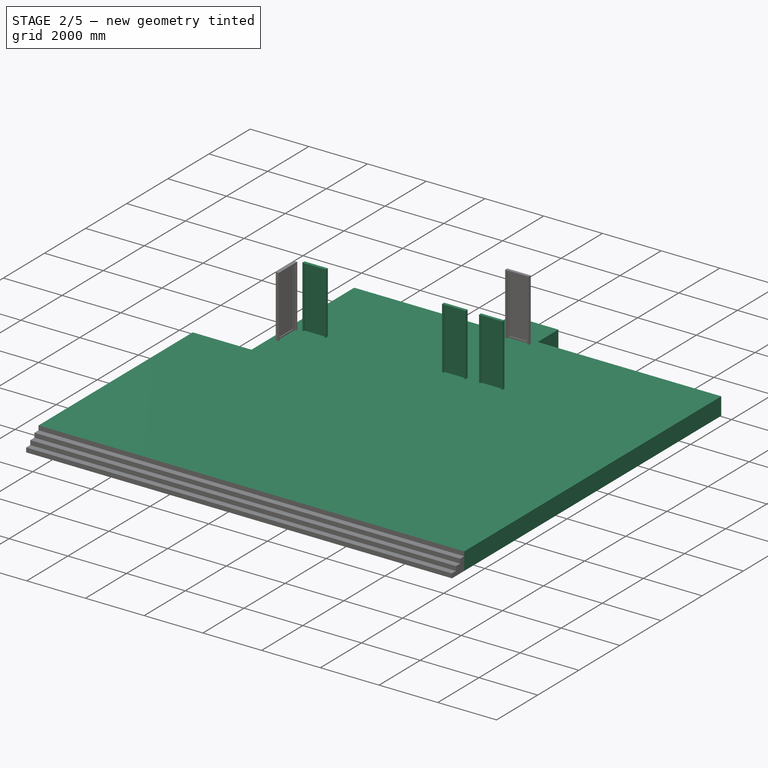
[diagram: stage 2 of 5 — iso view after this stage's code; geometry added in this stage tinted green]
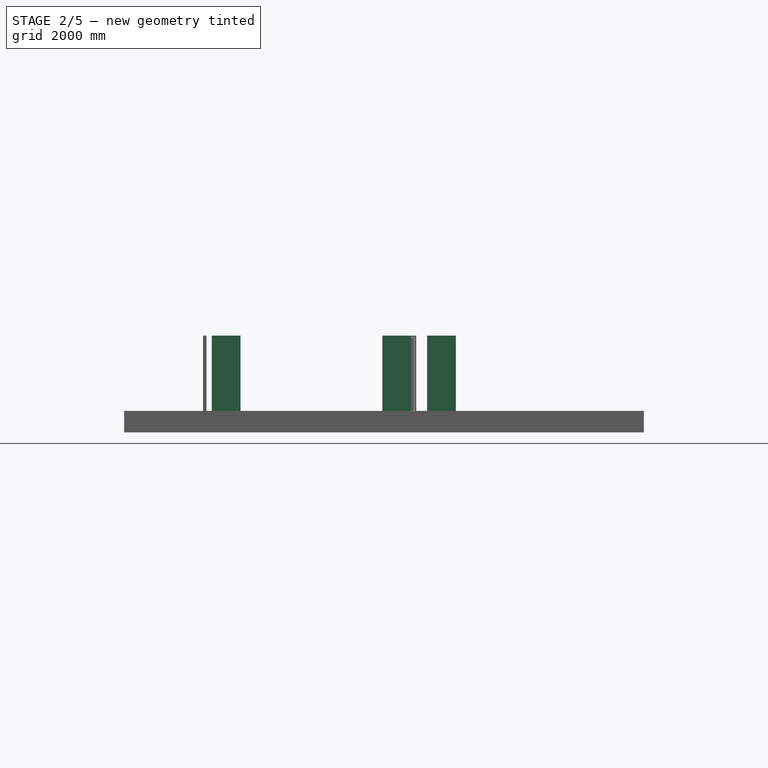
[diagram: stage 2 of 5 — front view after this stage's code; geometry added in this stage tinted green]
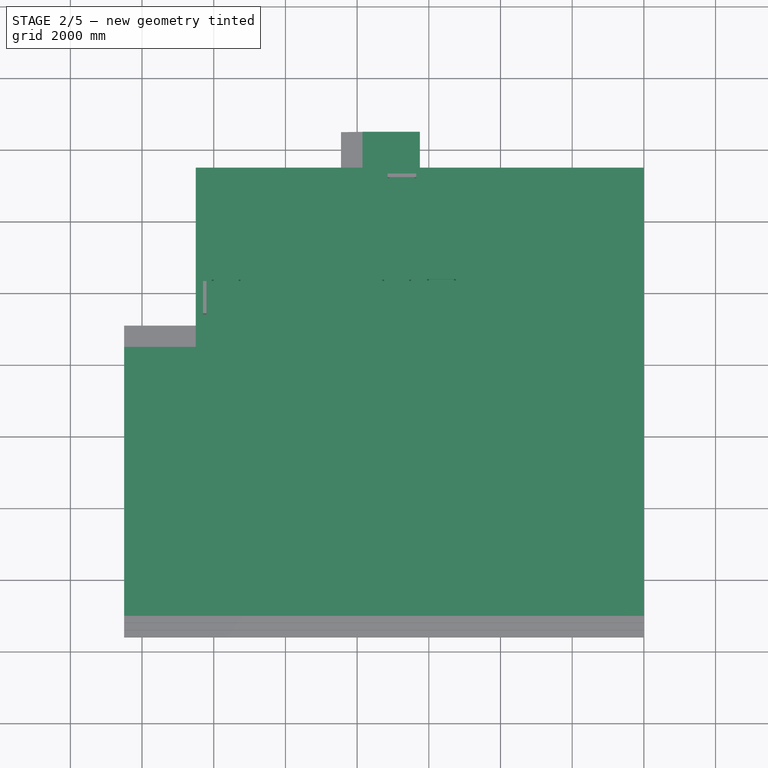
[diagram: stage 2 of 5 — top view after this stage's code; geometry added in this stage tinted green]
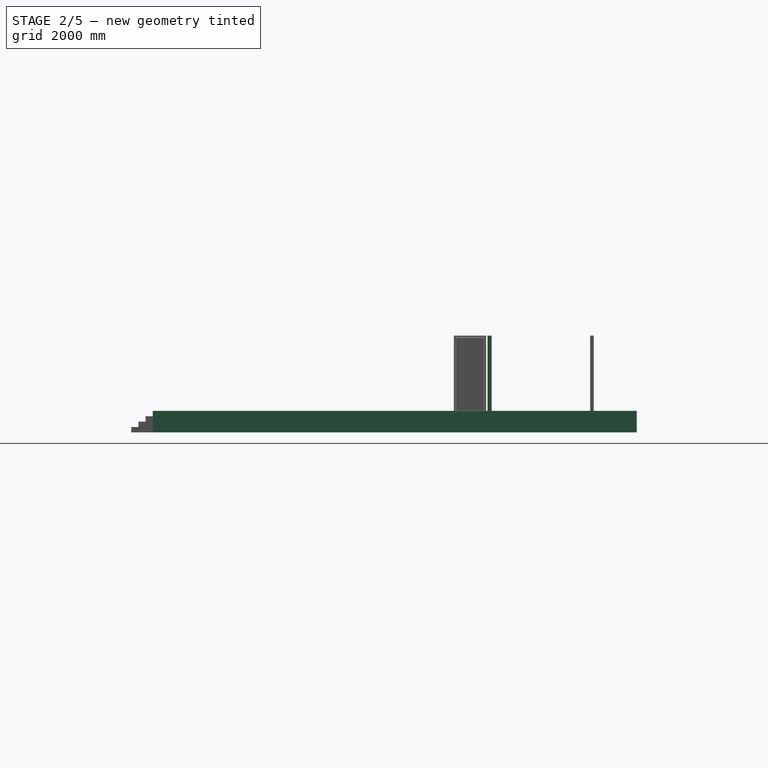
[diagram: stage 2 of 5 — right view after this stage's code; geometry added in this stage tinted green]
FEATURE [Sketcher::SketchObject] Sketch
  ArcFitTolerance = 1e-06
  FullyConstrained = true
  MakeInternals = false
  sketch-geometry (9):
    g0: LineSegment StartX=0 StartY=0 StartZ=0 EndX=0 EndY=9500 EndZ=0
    g1: LineSegment StartX=0 StartY=9500 StartZ=0 EndX=-12500 EndY=9500 EndZ=0
    g2: LineSegment [constr] StartX=-12500 StartY=0 StartZ=0 EndX=0 EndY=0 EndZ=0
    g3: LineSegment StartX=0 StartY=0 StartZ=0 EndX=0 EndY=-3000 EndZ=0
    g4: LineSegment StartX=0 StartY=-3000 StartZ=0 EndX=-14500 EndY=-3000 EndZ=0
    g5: LineSegment StartX=-14500 StartY=-3000 StartZ=0 EndX=-14500 EndY=4500 EndZ=0
    g6: LineSegment StartX=-14500 StartY=4500 StartZ=0 EndX=-12500 EndY=4500 EndZ=0
    g7: LineSegment StartX=-12500 StartY=9500 StartZ=0 EndX=-12500 EndY=4500 EndZ=0
    g8: LineSegment [constr] StartX=-12500 StartY=4500 StartZ=0 EndX=-12500 EndY=0 EndZ=0
  constraints (25):
    c: Coincident(g0,g1)
    c: Coincident(g1,g7)
    c: Vertical(g0)
    c: Horizontal(g1)
    c: Horizontal(g2)
    c: Distance(g0,g8) = 12500
    c: Distance(g1,g2) = 9500
    c: Coincident(g0,g-1)
    c: Coincident(g0,g3)
    c: PointOnObject(g3,g-2)
    c: Coincident(g3,g4)
    c: Horizontal(g4)
    c: Coincident(g4,g5)
    c: Vertical(g5)
    c: Coincident(g5,g6)
    c: Horizontal(g6)
    c: DistanceY(g3,g3) = 3000
    c: DistanceX(g6,g6) = 2000
    c: DistanceY(g5,g5) = 7500
    c: Coincident(g7,g8)
    c: Vertical(g7)
    c: Vertical(g8)
    c: Coincident(g2,g8)
    c: Coincident(g2,g0)
    c: Coincident(g6,g7)
FEATURE [Part::FeaturePython] Structure  label="Main Slab"  # Arch/BIM 118 (typed FeaturePython)
  Base = -> Sketch
  BaseMirror = false
  BaseOffsetX = 0
  BaseOffsetY = 0
  BasePerpendicularToTool = false
  BaseRotation = 0
  ComputedLength = 600
  FaceMaker = 0
  Height = 600
  HorizontalArea = 171250000
  IfcData = attributes={"GlobalId": {"name": "GlobalId", "type": "IfcGloballyUniqueId", "is_enum": false, "enum_values": []}, "Description": {"... (+453 chars omitted),+1 more (map truncated)
  IfcType = 118
  Length = 0
  MoveBase = false
  MoveWithHost = false
  Nodes = (7) [(0,0,0),(0,9500,0),(-12500,9500,0),(-12500,4500,0),(-14500,4500,0),(-14500,-3000,0),(2.96593e-32,-3000,0)]
  NodesOffset = 0
  Normal = (0,0,-1)
  PerimeterLength = 54000
  PredefinedType = 0
  ToolOffsetFirst = 0
  ToolOffsetLast = 0
  VerticalArea = 32400000
  Width = 100
FEATURE [Part::FeaturePython] Wall001  label="INT WALL"  # Arch/BIM 166 (typed FeaturePython)
  Align = 2
  ArchSketchData = true
  Area = 1.07625e+08
  Base = -> Sketch002
  BlockHeight = 0
  BlockLength = 0
  CountBroken = 0
  CountEntire = 0
  Face = 0
  Height = 3500
  HorizontalArea = 0
  IfcData = attributes={"GlobalId": {"name": "GlobalId", "type": "IfcGloballyUniqueId", "is_enum": false, "enum_values": []}, "Description": {"... (+533 chars omitted),+1 more (map truncated)
  IfcType = 166
  Joint = 0
  Length = 30750
  MakeBlocks = false
  MoveBase = false
  MoveWithHost = false
  Normal = (0,0,0)
  OffsetFirst = 0
  OffsetSecond = 0
  PerimeterLength = 0
  PredefinedType = 0
  Subtractions = -> [Roof]
  VerticalArea = 0
  Width = 100
FEATURE [Part::FeaturePython] Window030  label="Door003"  # Arch/BIM 41 (typed FeaturePython)
  Area = 1680000
  Base = -> Sketch024
  Frame = 50
  Height = 2100
  HoleDepth = 100
  HoleWire = 0
  HorizontalArea = 0
  Hosts = -> [Wall001]
  IfcData = attributes={"GlobalId": {"name": "GlobalId", "type": "IfcGloballyUniqueId", "is_enum": false, "enum_values": []}, "Description": {"... (+1933 chars omitted),+1 more (map truncated)
  IfcType = 41
  LouvreSpacing = 0
  LouvreWidth = 0
  MoveBase = false
  MoveWithHost = true
  Normal = (0,1,-2e-16)
  Opening = 0
  OperationType = 0
  OverallHeight = 2100
  OverallWidth = 800
  PerimeterLength = 0
  PredefinedType = 0
  Preset = 6
  SymbolElevation = false
  SymbolPlan = true
  VerticalArea = 0
  Width = 800
  WindowParts = OuterFrame | Frame | Wire0,Wire1 | 50.0+V | 0.00+V | Door | Solid panel | Wire1,Edge8,Mode1 | 50.0 | 50.0+V
  expr: OverallHeight = .Height.Value
  expr: OverallWidth = .Width.Value
FEATURE [Part::FeaturePython] Window031  label="Door004"  # Arch/BIM 41 (typed FeaturePython)
  Area = 1680000
  Base = -> Sketch025
  Frame = 50
  Height = 2100
  HoleDepth = 100
  HoleWire = 0
  HorizontalArea = 0
  Hosts = -> [Wall001]
  IfcData = attributes={"GlobalId": {"name": "GlobalId", "type": "IfcGloballyUniqueId", "is_enum": false, "enum_values": []}, "Description": {"... (+1933 chars omitted),+1 more (map truncated)
  IfcType = 41
  LouvreSpacing = 0
  LouvreWidth = 0
  MoveBase = false
  MoveWithHost = true
  Normal = (0,1,-2e-16)
  Opening = 0
  OperationType = 0
  OverallHeight = 2100
  OverallWidth = 800
  PerimeterLength = 0
  PredefinedType = 0
  Preset = 6
  SymbolElevation = false
  SymbolPlan = true
  VerticalArea = 0
  Width = 800
  WindowParts = OuterFrame | Frame | Wire0,Wire1 | 50.0+V | 0.00+V | Door | Solid panel | Wire1,Edge8,Mode1 | 50.0 | 50.0+V
  expr: OverallHeight = .Height.Value
  expr: OverallWidth = .Width.Value
FEATURE [Part::FeaturePython] Window032  label="Door005"  # Arch/BIM 41 (typed FeaturePython)
  Area = 1680000
  Base = -> Sketch026
  Frame = 50
  Height = 2100
  HoleDepth = 100
  HoleWire = 0
  HorizontalArea = 0
  Hosts = -> [Wall001]
  IfcData = attributes={"GlobalId": {"name": "GlobalId", "type": "IfcGloballyUniqueId", "is_enum": false, "enum_values": []}, "Description": {"... (+1933 chars omitted),+1 more (map truncated)
  IfcType = 41
  LouvreSpacing = 0
  LouvreWidth = 0
  MoveBase = false
  MoveWithHost = true
  Normal = (0,1,-2e-16)
  Opening = 0
  OperationType = 0
  OverallHeight = 2100
  OverallWidth = 800
  PerimeterLength = 0
  PredefinedType = 0
  Preset = 6
  SymbolElevation = false
  SymbolPlan = true
  VerticalArea = 0
  Width = 800
  WindowParts = OuterFrame | Frame | Wire0,Wire1 | 50.0+V | 0.00+V | Door | Solid panel | Wire1,Edge8,Mode1 | 50.0 | 50.0+V
  expr: OverallHeight = .Height.Value
  expr: OverallWidth = .Width.Value
FEATURE [Part::FeaturePython] Window033  label="Opening"  # Arch/BIM 93 (typed FeaturePython)
  Area = 2310000
  Base = -> Sketch027
  Frame = 50
  Height = 2100
  HoleDepth = 100
  HoleWire = 0
  HorizontalArea = 0
  Hosts = -> [Wall001]
  IfcData = attributes={"GlobalId": {"name": "GlobalId", "type": "IfcGloballyUniqueId", "is_enum": false, "enum_values": []}, "Description": {"... (+1192 chars omitted),+1 more (map truncated)
  IfcType = 93
  LouvreSpacing = 0
  LouvreWidth = 0
  MoveBase = false
  MoveWithHost = true
  Normal = (0,1,-2e-16)
  Opening = 0
  PerimeterLength = 0
  PredefinedType = 0
  Preset = 10
  SymbolElevation = false
  SymbolPlan = false
  VerticalArea = 0
  Width = 1100
FEATURE [Part::FeaturePython] Window034  label="Opening001"  # Arch/BIM 93 (typed FeaturePython)
  Area = 6090000
  Base = -> Sketch033
  Frame = 50
  Height = 2100
  HoleDepth = 100
  HoleWire = 0
  HorizontalArea = 0
  Hosts = -> [Wall001]
  IfcData = attributes={"GlobalId": {"name": "GlobalId", "type": "IfcGloballyUniqueId", "is_enum": false, "enum_values": []}, "Description": {"... (+1192 chars omitted),+1 more (map truncated)
  IfcType = 93
  LouvreSpacing = 0
  LouvreWidth = 0
  MoveBase = false
  MoveWithHost = true
  Normal = (0,-1,2e-16)
  Opening = 0
  PerimeterLength = 0
  Placement = pos=(-100,0,0) rot=(0,0,1;0rad)
  PredefinedType = 0
  Preset = 10
  SymbolElevation = false
  SymbolPlan = false
  VerticalArea = 0
  Width = 2900
FEATURE [Sketcher::SketchObject] Sketch035  label="S BACK SLAB"
  ArcFitTolerance = 1e-06
  FullyConstrained = true
  MakeInternals = false
  sketch-geometry (4):
    g0: LineSegment StartX=-7850 StartY=10500 StartZ=0 EndX=-7850 EndY=9500 EndZ=0
    g1: LineSegment StartX=-7850 StartY=9500 StartZ=0 EndX=-6250 EndY=9500 EndZ=0
    g2: LineSegment StartX=-6250 StartY=9500 StartZ=0 EndX=-6250 EndY=10500 EndZ=0
    g3: LineSegment StartX=-6250 StartY=10500 StartZ=0 EndX=-7850 EndY=10500 EndZ=0
  constraints (12):
    c: Coincident(g0,g1)
    c: Coincident(g1,g2)
    c: Coincident(g2,g3)
    c: Coincident(g3,g0)
    c: Vertical(g0)
    c: Vertical(g2)
    c: Horizontal(g1)
    c: Horizontal(g3)
    c: DistanceX(g2,g-1) = 6250
    c: DistanceY(g2,g2) = 1000
    c: DistanceX(g3,g3) = 1600
    c: DistanceY(g-1,g1) = 9500
FEATURE [Part::FeaturePython] Structure001  label="Back Slab"  # Arch/BIM 118 (typed FeaturePython)
  Base = -> Sketch035
  BaseMirror = false
  BaseOffsetX = 0
  BaseOffsetY = 0
  BasePerpendicularToTool = false
  BaseRotation = 0
  ComputedLength = 600
  FaceMaker = 0
  Height = 600
  HorizontalArea = 1600000
  IfcData = attributes={"GlobalId": {"name": "GlobalId", "type": "IfcGloballyUniqueId", "is_enum": false, "enum_values": []}, "Description": {"... (+453 chars omitted),+1 more (map truncated)
  IfcType = 118
  Length = 0
  MoveBase = false
  MoveWithHost = false
  Nodes = (4) [(-7850,10500,0),(-7850,9500,0),(-6250,9500,0),(-6250,10500,0)]
  NodesOffset = 0
  Normal = (0,0,-1)
  PerimeterLength = 5200
  PredefinedType = 0
  ToolOffsetFirst = 0
  ToolOffsetLast = 0
  VerticalArea = 3120000
  Width = 100
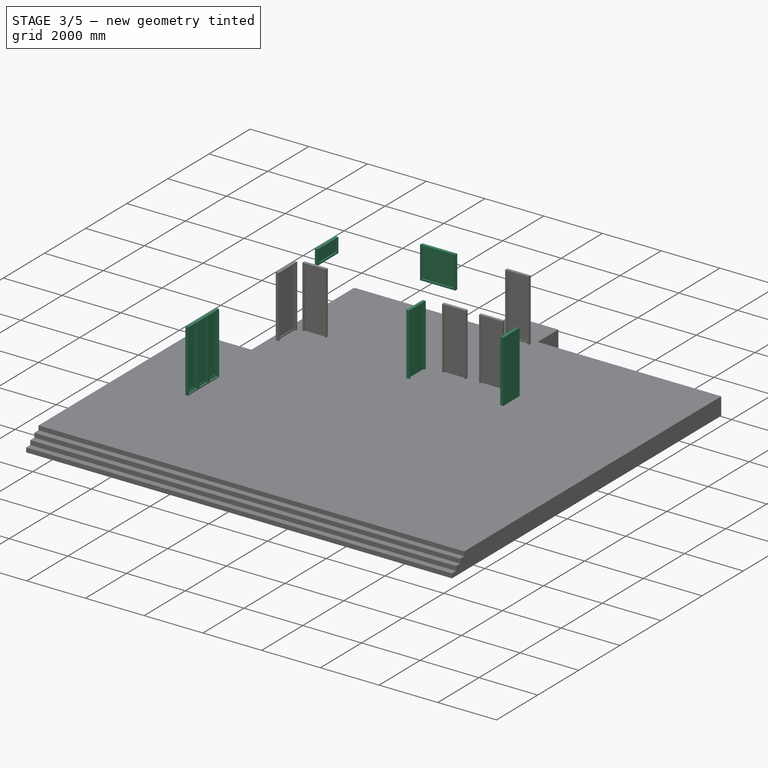
[diagram: stage 3 of 5 — iso view after this stage's code; geometry added in this stage tinted green]
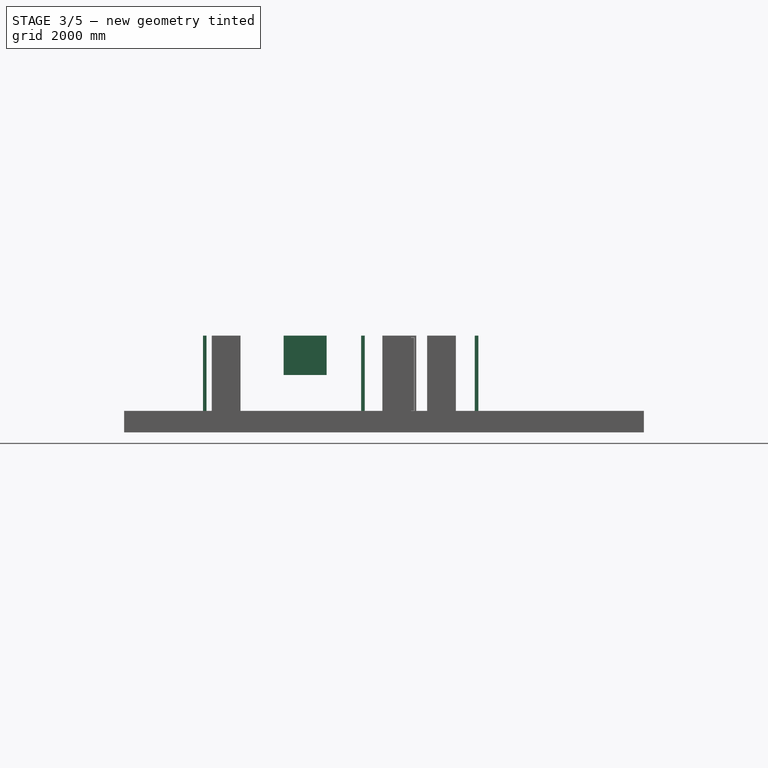
[diagram: stage 3 of 5 — front view after this stage's code; geometry added in this stage tinted green]
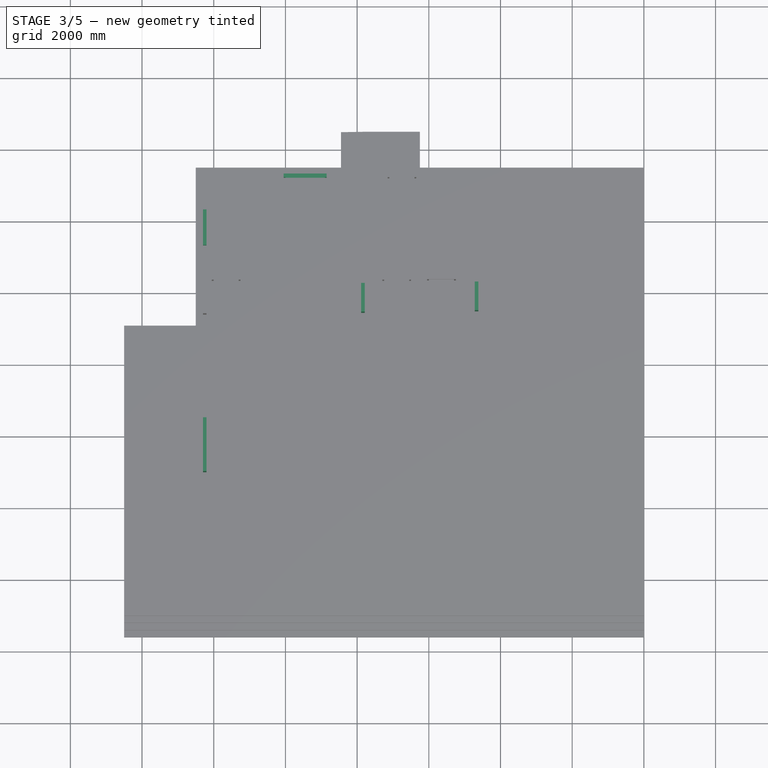
[diagram: stage 3 of 5 — top view after this stage's code; geometry added in this stage tinted green]
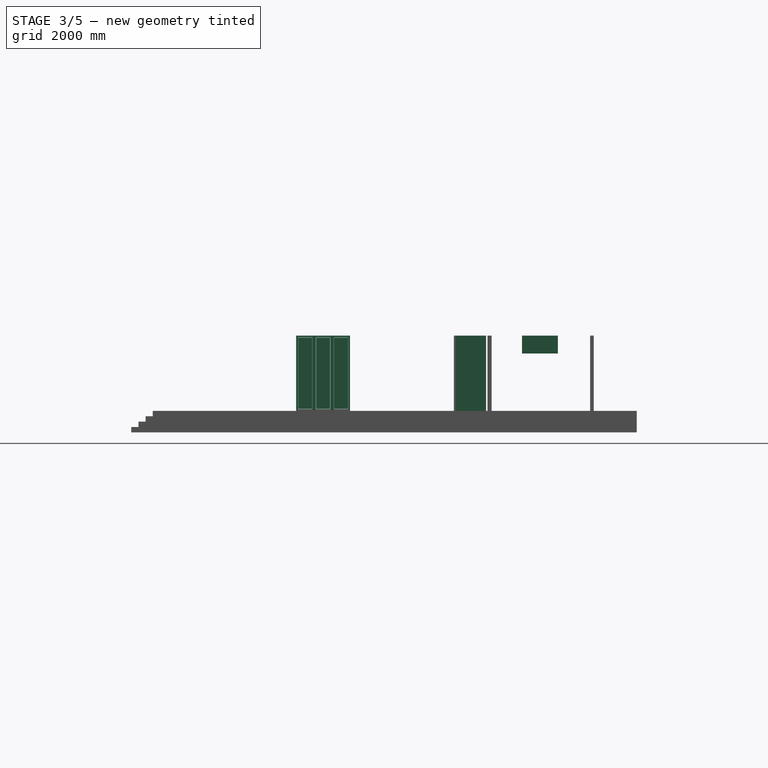
[diagram: stage 3 of 5 — right view after this stage's code; geometry added in this stage tinted green]
FEATURE [Part::FeaturePython] Window017  # Arch/BIM 170 (typed FeaturePython)
  Area = 1320000
  Base = -> Sketch016
  Frame = 50
  Height = 1100
  HoleDepth = 0
  HoleWire = 0
  HorizontalArea = 0
  Hosts = -> [Wall]
  IfcData = attributes={"GlobalId": {"name": "GlobalId", "type": "IfcGloballyUniqueId", "is_enum": false, "enum_values": []}, "Description": {"... (+1231 chars omitted),+1 more (map truncated)
  IfcType = 170
  LouvreSpacing = 0
  LouvreWidth = 0
  MoveBase = false
  MoveWithHost = true
  Normal = (0,1,-2e-16)
  Opening = 0
  OverallHeight = 1100
  OverallWidth = 1200
  PartitioningType = 0
  PerimeterLength = 0
  Placement = pos=(0,0,1000) rot=(0,0,1;0rad)
  PredefinedType = 0
  Preset = 1
  SymbolElevation = false
  SymbolPlan = false
  VerticalArea = 0
  Width = 1200
  WindowParts = OuterFrame | Frame | Wire0,Wire1 | 50.0+V | 0.00+V | Glass | Glass panel | Wire1 | 10.0 | 50.0+V
  expr: OverallHeight = .Height.Value
  expr: OverallWidth = .Width.Value
FEATURE [Part::FeaturePython] Window018  # Arch/BIM 170 (typed FeaturePython)
  Area = 500000
  Base = -> Sketch017
  Frame = 50
  Height = 500
  HoleDepth = 0
  HoleWire = 0
  HorizontalArea = 0
  Hosts = -> [Wall]
  IfcData = attributes={"GlobalId": {"name": "GlobalId", "type": "IfcGloballyUniqueId", "is_enum": false, "enum_values": []}, "Description": {"... (+1230 chars omitted),+1 more (map truncated)
  IfcType = 170
  LouvreSpacing = 0
  LouvreWidth = 0
  MoveBase = false
  MoveWithHost = true
  Normal = (-1,0,0)
  Opening = 0
  OverallHeight = 500
  OverallWidth = 1000
  PartitioningType = 0
  PerimeterLength = 0
  Placement = pos=(0,0,1600) rot=(0,0,1;0rad)
  PredefinedType = 0
  Preset = 1
  SymbolElevation = false
  SymbolPlan = false
  VerticalArea = 0
  Width = 1000
  WindowParts = OuterFrame | Frame | Wire0,Wire1 | 50.0+V | 0.00+V | Glass | Glass panel | Wire1 | 10.0 | 50.0+V
  expr: OverallHeight = .Height.Value
  expr: OverallWidth = .Width.Value
FEATURE [Part::FeaturePython] Window022  # Arch/BIM 170 (typed FeaturePython)
  Area = 1050000
  Base = -> Sketch019
  Frame = 50
  Height = 2100
  HoleDepth = 0
  HoleWire = 0
  HorizontalArea = 0
  Hosts = -> [Wall]
  IfcData = attributes={"GlobalId": {"name": "GlobalId", "type": "IfcGloballyUniqueId", "is_enum": false, "enum_values": []}, "Description": {"... (+1230 chars omitted),+1 more (map truncated)
  IfcType = 170
  LouvreSpacing = 0
  LouvreWidth = 0
  MoveBase = false
  MoveWithHost = true
  Normal = (-1,0,0)
  Opening = 0
  OverallHeight = 2100
  OverallWidth = 500
  PartitioningType = 0
  PerimeterLength = 0
  Placement = pos=(0,500,0) rot=(0,0,1;0rad)
  PredefinedType = 0
  Preset = 2
  SymbolElevation = false
  SymbolPlan = false
  VerticalArea = 0
  Width = 500
  WindowParts = OuterFrame | Frame | Wire0,Wire1 | 50.0+V | 0.00+V | InnerFrame | Frame | Wire2,Wire3,Edge8,Mode1 | 50.0 | 50.0+V | InnerGlass | Glass panel | Wire3 | 5.0 | 75.0+V
  expr: OverallHeight = .Height.Value
  expr: OverallWidth = .Width.Value
FEATURE [Part::FeaturePython] Window023  # Arch/BIM 170 (typed FeaturePython)
  Area = 1050000
  Base = -> Sketch019
  Frame = 50
  Height = 2100
  HoleDepth = 0
  HoleWire = 0
  HorizontalArea = 0
  Hosts = -> [Wall]
  IfcData = attributes={"GlobalId": {"name": "GlobalId", "type": "IfcGloballyUniqueId", "is_enum": false, "enum_values": []}, "Description": {"... (+1230 chars omitted),+1 more (map truncated)
  IfcType = 170
  LouvreSpacing = 0
  LouvreWidth = 0
  MoveBase = false
  MoveWithHost = true
  Normal = (-1,0,0)
  Opening = 0
  OverallHeight = 2100
  OverallWidth = 500
  PartitioningType = 0
  PerimeterLength = 0
  PredefinedType = 0
  Preset = 2
  SymbolElevation = false
  SymbolPlan = false
  VerticalArea = 0
  Width = 500
  WindowParts = OuterFrame | Frame | Wire0,Wire1 | 50.0+V | 0.00+V | InnerFrame | Frame | Wire2,Wire3,Edge8,Mode1 | 50.0 | 50.0+V | InnerGlass | Glass panel | Wire3 | 5.0 | 75.0+V
  expr: OverallHeight = .Height.Value
  expr: OverallWidth = .Width.Value
FEATURE [Part::FeaturePython] Window024  # Arch/BIM 170 (typed FeaturePython)
  Area = 1050000
  Base = -> Sketch019
  Frame = 50
  Height = 2100
  HoleDepth = 0
  HoleWire = 0
  HorizontalArea = 0
  Hosts = -> [Wall]
  IfcData = attributes={"GlobalId": {"name": "GlobalId", "type": "IfcGloballyUniqueId", "is_enum": false, "enum_values": []}, "Description": {"... (+1230 chars omitted),+1 more (map truncated)
  IfcType = 170
  LouvreSpacing = 0
  LouvreWidth = 0
  MoveBase = false
  MoveWithHost = true
  Normal = (-1,0,0)
  Opening = 0
  OverallHeight = 2100
  OverallWidth = 500
  PartitioningType = 0
  PerimeterLength = 0
  Placement = pos=(0,1000,0) rot=(0,0,1;0rad)
  PredefinedType = 0
  Preset = 2
  SymbolElevation = false
  SymbolPlan = false
  VerticalArea = 0
  Width = 500
  WindowParts = OuterFrame | Frame | Wire0,Wire1 | 50.0+V | 0.00+V | InnerFrame | Frame | Wire2,Wire3,Edge8,Mode1 | 50.0 | 50.0+V | InnerGlass | Glass panel | Wire3 | 5.0 | 75.0+V
  expr: OverallHeight = .Height.Value
  expr: OverallWidth = .Width.Value
FEATURE [Part::FeaturePython] Window027  label="Door"  # Arch/BIM 41 (typed FeaturePython)
  Area = 1680000
  Base = -> Sketch022
  Frame = 50
  Height = 2100
  HoleDepth = 0
  HoleWire = 0
  HorizontalArea = 0
  Hosts = -> [Wall001]
  IfcData = attributes={"GlobalId": {"name": "GlobalId", "type": "IfcGloballyUniqueId", "is_enum": false, "enum_values": []}, "Description": {"... (+1933 chars omitted),+1 more (map truncated)
  IfcType = 41
  LouvreSpacing = 0
  LouvreWidth = 0
  MoveBase = false
  MoveWithHost = true
  Normal = (1,0,0)
  Opening = 0
  OperationType = 0
  OverallHeight = 2100
  OverallWidth = 800
  PerimeterLength = 0
  PredefinedType = 0
  Preset = 6
  SymbolElevation = false
  SymbolPlan = true
  VerticalArea = 0
  Width = 800
  WindowParts = OuterFrame | Frame | Wire0,Wire1 | 50.0+V | 0.00+V | Door | Solid panel | Wire1,Edge8,Mode1 | 50.0 | 50.0+V
  expr: OverallHeight = .Height.Value
  expr: OverallWidth = .Width.Value
FEATURE [Part::FeaturePython] Window028  label="Door001"  # Arch/BIM 41 (typed FeaturePython)
  Area = 1680000
  Base = -> Sketch023
  Frame = 50
  Height = 2100
  HoleDepth = 0
  HoleWire = 0
  HorizontalArea = 0
  Hosts = -> [Wall001]
  IfcData = attributes={"GlobalId": {"name": "GlobalId", "type": "IfcGloballyUniqueId", "is_enum": false, "enum_values": []}, "Description": {"... (+1933 chars omitted),+1 more (map truncated)
  IfcType = 41
  LouvreSpacing = 0
  LouvreWidth = 0
  MoveBase = false
  MoveWithHost = true
  Normal = (-1,0,0)
  Opening = 0
  OperationType = 0
  OverallHeight = 2100
  OverallWidth = 800
  PerimeterLength = 0
  PredefinedType = 0
  Preset = 6
  SymbolElevation = false
  SymbolPlan = true
  VerticalArea = 0
  Width = 800
  WindowParts = OuterFrame | Frame | Wire0,Wire1 | 50.0+V | 0.00+V | Door | Solid panel | Wire1,Edge8,Mode1 | 50.0 | 50.0+V
  expr: OverallHeight = .Height.Value
  expr: OverallWidth = .Width.Value
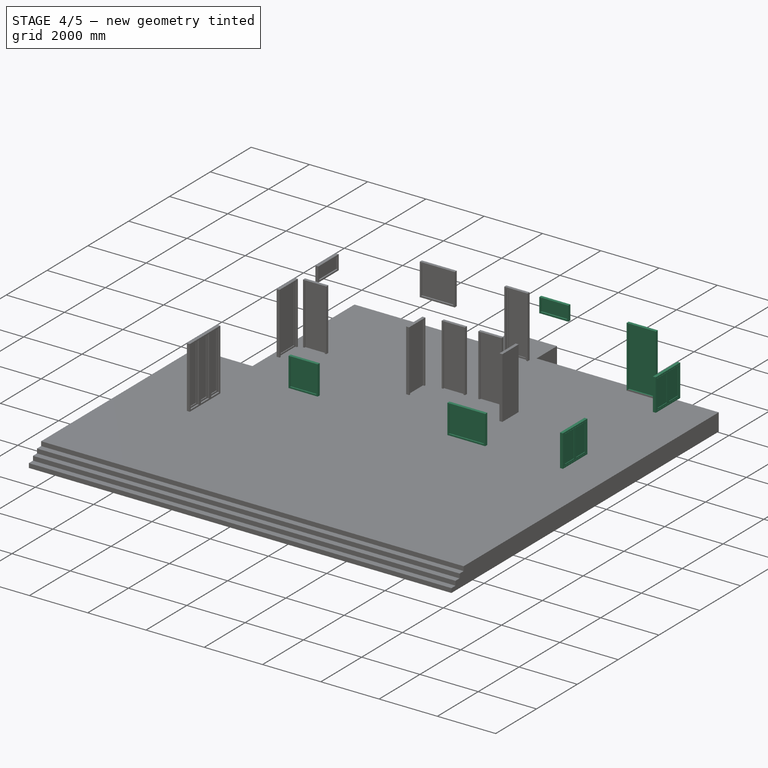
[diagram: stage 4 of 5 — iso view after this stage's code; geometry added in this stage tinted green]
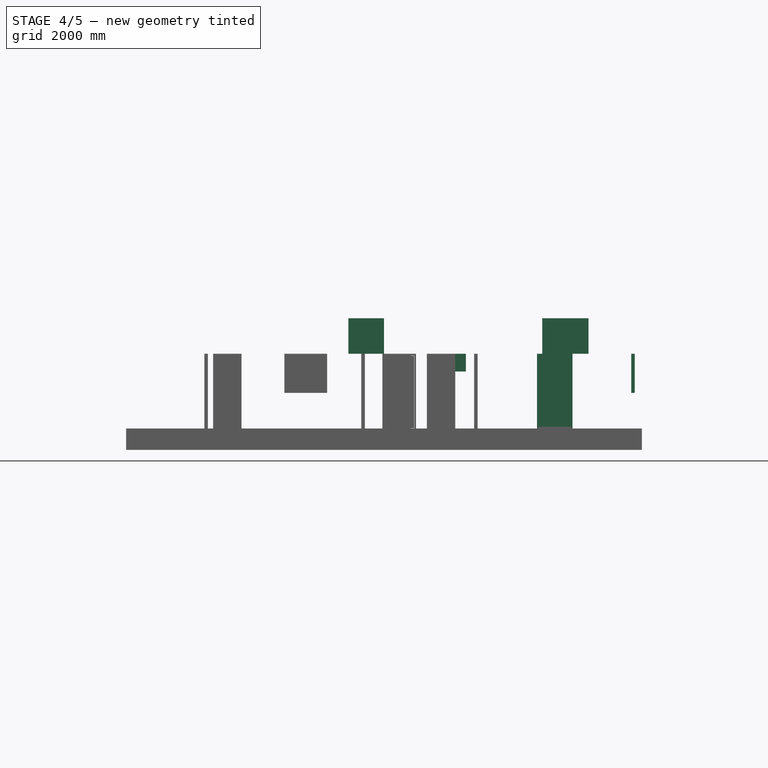
[diagram: stage 4 of 5 — front view after this stage's code; geometry added in this stage tinted green]
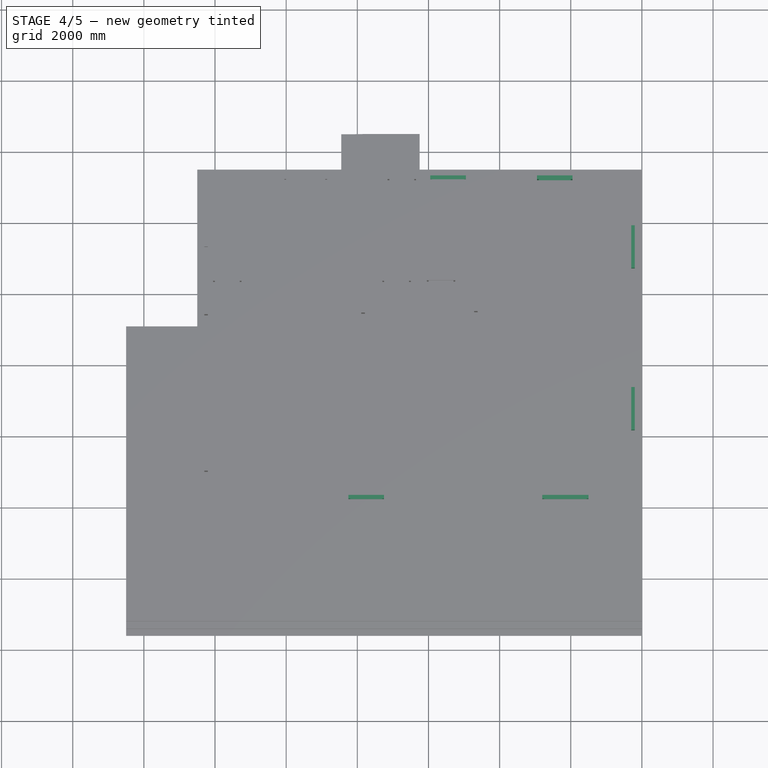
[diagram: stage 4 of 5 — top view after this stage's code; geometry added in this stage tinted green]
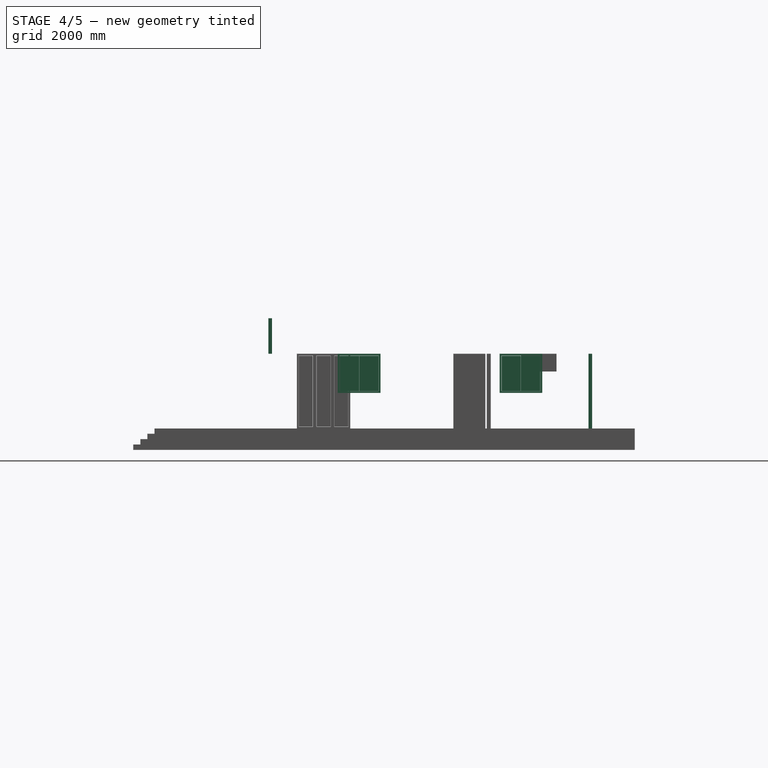
[diagram: stage 4 of 5 — right view after this stage's code; geometry added in this stage tinted green]
FEATURE [Part::FeaturePython] Window007  # Arch/BIM 170 (typed FeaturePython)
  Area = 1000000
  Base = -> Sketch006
  Frame = 50
  Height = 1000
  HoleDepth = 0
  HoleWire = 0
  HorizontalArea = 0
  Hosts = -> [Wall]
  IfcData = attributes={"GlobalId": {"name": "GlobalId", "type": "IfcGloballyUniqueId", "is_enum": false, "enum_values": []}, "Description": {"... (+1231 chars omitted),+1 more (map truncated)
  IfcType = 170
  LouvreSpacing = 0
  LouvreWidth = 0
  MoveBase = false
  MoveWithHost = true
  Normal = (0,-1,2e-16)
  Opening = 0
  OverallHeight = 1000
  OverallWidth = 1000
  PartitioningType = 0
  PerimeterLength = 0
  Placement = pos=(-3000,0,0) rot=(0,0,1;0rad)
  PredefinedType = 0
  Preset = 1
  SymbolElevation = false
  SymbolPlan = false
  VerticalArea = 0
  Width = 1000
  WindowParts = OuterFrame | Frame | Wire0,Wire1 | 50.0+V | 0.00+V | Glass | Glass panel | Wire1 | 10.0 | 50.0+V
  expr: OverallHeight = .Height.Value
  expr: OverallWidth = .Width.Value
FEATURE [Part::FeaturePython] Window008  # Arch/BIM 170 (typed FeaturePython)
  Area = 1300000
  Base = -> Sketch005
  Frame = 50
  Height = 1000
  HoleDepth = 0
  HoleWire = 0
  HorizontalArea = 0
  Hosts = -> [Wall]
  IfcData = attributes={"GlobalId": {"name": "GlobalId", "type": "IfcGloballyUniqueId", "is_enum": false, "enum_values": []}, "Description": {"... (+1231 chars omitted),+1 more (map truncated)
  IfcType = 170
  LouvreSpacing = 0
  LouvreWidth = 0
  MoveBase = false
  MoveWithHost = true
  Normal = (0,-1,2e-16)
  Opening = 0
  OverallHeight = 1000
  OverallWidth = 1300
  PartitioningType = 0
  PerimeterLength = 0
  Placement = pos=(8200,-3.979e-13,0) rot=(0,0,1;0rad)
  PredefinedType = 0
  Preset = 1
  SymbolElevation = false
  SymbolPlan = false
  VerticalArea = 0
  Width = 1300
  WindowParts = OuterFrame | Frame | Wire0,Wire1 | 50.0+V | 0.00+V | Glass | Glass panel | Wire1 | 10.0 | 50.0+V
  expr: OverallHeight = .Height.Value
  expr: OverallWidth = .Width.Value
FEATURE [Part::FeaturePython] Window009  # Arch/BIM 170 (typed FeaturePython)
  Area = 1320000
  Base = -> Sketch008
  Frame = 50
  Height = 1100
  HoleDepth = 0
  HoleWire = 0
  HorizontalArea = 0
  Hosts = -> [Wall]
  IfcData = attributes={"GlobalId": {"name": "GlobalId", "type": "IfcGloballyUniqueId", "is_enum": false, "enum_values": []}, "Description": {"... (+1231 chars omitted),+1 more (map truncated)
  IfcType = 170
  LouvreSpacing = 0
  LouvreWidth = 0
  MoveBase = false
  MoveWithHost = true
  Normal = (1,0,0)
  Opening = 0
  OverallHeight = 1100
  OverallWidth = 1200
  PartitioningType = 0
  PerimeterLength = 0
  Placement = pos=(0,0,1000) rot=(0,0,1;0rad)
  PredefinedType = 0
  Preset = 3
  SymbolElevation = false
  SymbolPlan = false
  VerticalArea = 0
  Width = 1200
  WindowParts = OuterFrame | Frame | Wire0,Wire1 | 50.0+V | 0.00+V | LeftFrame | Frame | Wire2,Wire3,Edge8,Mode1 | 50.0 | 50.0+V | LeftGlass | Glass panel | Wire3 | 5.0 | 75.0+V | RightFrame | Frame | Wire4,Wire5,Edge6,Mode2 | 50.0 | 50.0+V | RightGlass | Glass panel | Wire5 | 5.0 | 75.0+V
  expr: OverallHeight = .Height.Value
  expr: OverallWidth = .Width.Value
FEATURE [Part::FeaturePython] Window010  # Arch/BIM 170 (typed FeaturePython)
  Area = 1320000
  Base = -> Sketch008
  Frame = 50
  Height = 1100
  HoleDepth = 0
  HoleWire = 0
  HorizontalArea = 0
  Hosts = -> [Wall]
  IfcData = attributes={"GlobalId": {"name": "GlobalId", "type": "IfcGloballyUniqueId", "is_enum": false, "enum_values": []}, "Description": {"... (+1231 chars omitted),+1 more (map truncated)
  IfcType = 170
  LouvreSpacing = 0
  LouvreWidth = 0
  MoveBase = false
  MoveWithHost = true
  Normal = (1,0,0)
  Opening = 0
  OverallHeight = 1100
  OverallWidth = 1200
  PartitioningType = 0
  PerimeterLength = 0
  Placement = pos=(0,4550,1000) rot=(0,0,1;0rad)
  PredefinedType = 0
  Preset = 3
  SymbolElevation = false
  SymbolPlan = false
  VerticalArea = 0
  Width = 1200
  WindowParts = OuterFrame | Frame | Wire0,Wire1 | 50.0+V | 0.00+V | LeftFrame | Frame | Wire2,Wire3,Edge8,Mode1 | 50.0 | 50.0+V | LeftGlass | Glass panel | Wire3 | 5.0 | 75.0+V | RightFrame | Frame | Wire4,Wire5,Edge6,Mode2 | 50.0 | 50.0+V | RightGlass | Glass panel | Wire5 | 5.0 | 75.0+V
  expr: OverallHeight = .Height.Value
  expr: OverallWidth = .Width.Value
FEATURE [Part::FeaturePython] Window011  # Arch/BIM 170 (typed FeaturePython)
  Area = 2100000
  Base = -> Sketch009
  Frame = 50
  Height = 2100
  HoleDepth = 0
  HoleWire = 0
  HorizontalArea = 0
  Hosts = -> [Wall]
  IfcData = attributes={"GlobalId": {"name": "GlobalId", "type": "IfcGloballyUniqueId", "is_enum": false, "enum_values": []}, "Description": {"... (+1231 chars omitted),+1 more (map truncated)
  IfcType = 170
  LouvreSpacing = 0
  LouvreWidth = 0
  MoveBase = false
  MoveWithHost = true
  Normal = (0,1,-2e-16)
  Opening = 0
  OverallHeight = 2100
  OverallWidth = 1000
  PartitioningType = 0
  PerimeterLength = 0
  PredefinedType = 0
  Preset = 1
  SymbolElevation = false
  SymbolPlan = false
  VerticalArea = 0
  Width = 1000
  WindowParts = OuterFrame | Frame | Wire0,Wire1 | 50.0+V | 0.00+V | Glass | Glass panel | Wire1 | 10.0 | 50.0+V
  expr: OverallHeight = .Height.Value
  expr: OverallWidth = .Width.Value
FEATURE [Part::FeaturePython] Window014  # Arch/BIM 170 (typed FeaturePython)
  Area = 500000
  Base = -> Sketch013
  Frame = 50
  Height = 500
  HoleDepth = 0
  HoleWire = 0
  HorizontalArea = 0
  Hosts = -> [Wall]
  IfcData = attributes={"GlobalId": {"name": "GlobalId", "type": "IfcGloballyUniqueId", "is_enum": false, "enum_values": []}, "Description": {"... (+1230 chars omitted),+1 more (map truncated)
  IfcType = 170
  LouvreSpacing = 0
  LouvreWidth = 0
  MoveBase = false
  MoveWithHost = true
  Normal = (0,1,-2e-16)
  Opening = 0
  OverallHeight = 500
  OverallWidth = 1000
  PartitioningType = 0
  PerimeterLength = 0
  Placement = pos=(0,0,1600) rot=(0,0,1;0rad)
  PredefinedType = 0
  Preset = 1
  SymbolElevation = false
  SymbolPlan = false
  VerticalArea = 0
  Width = 1000
  WindowParts = OuterFrame | Frame | Wire0,Wire1 | 50.0+V | 0.00+V | Glass | Glass panel | Wire1 | 10.0 | 50.0+V
  expr: OverallHeight = .Height.Value
  expr: OverallWidth = .Width.Value
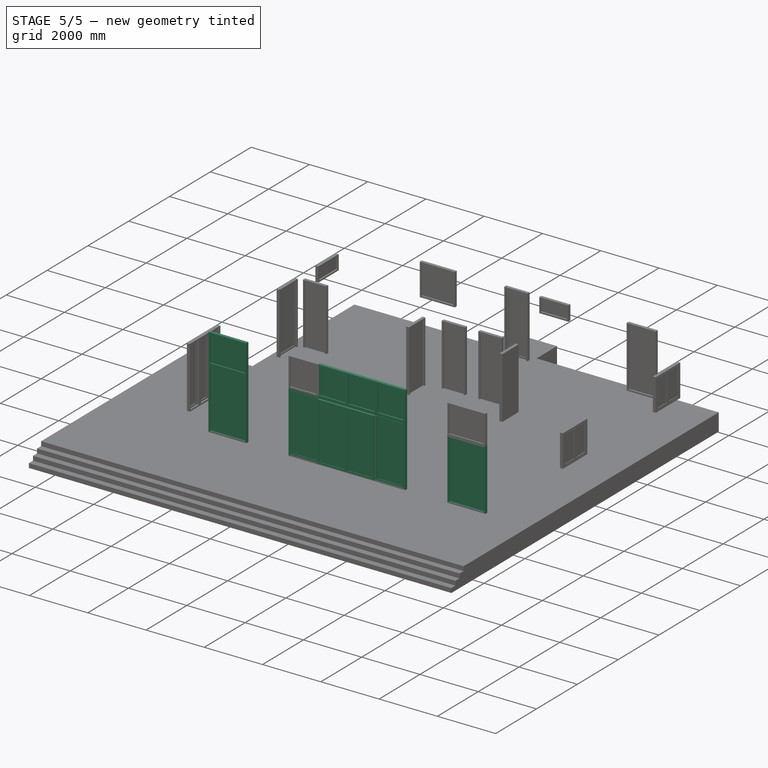
[diagram: stage 5 of 5 — iso view after this stage's code; geometry added in this stage tinted green]
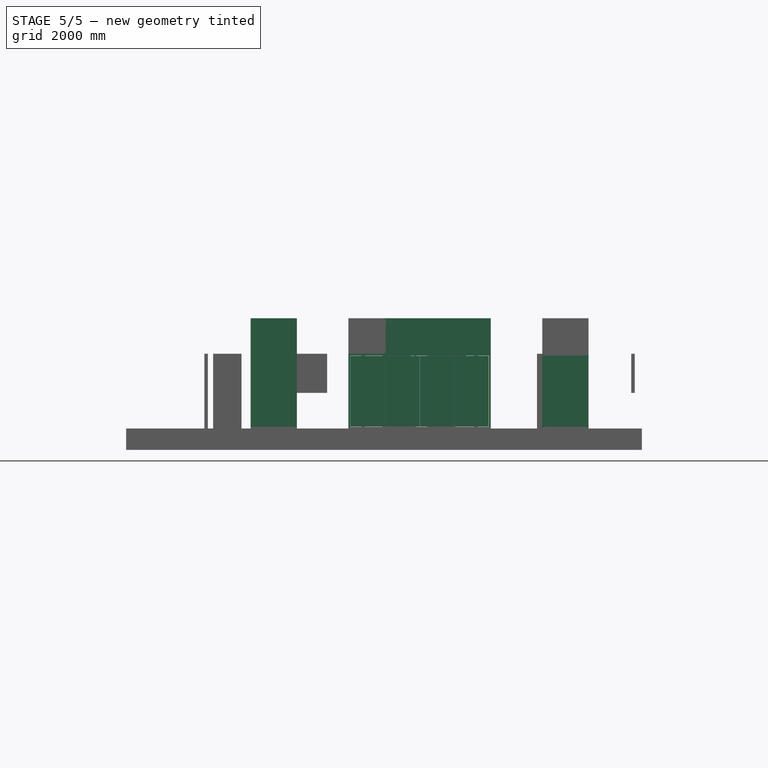
[diagram: stage 5 of 5 — front view after this stage's code; geometry added in this stage tinted green]
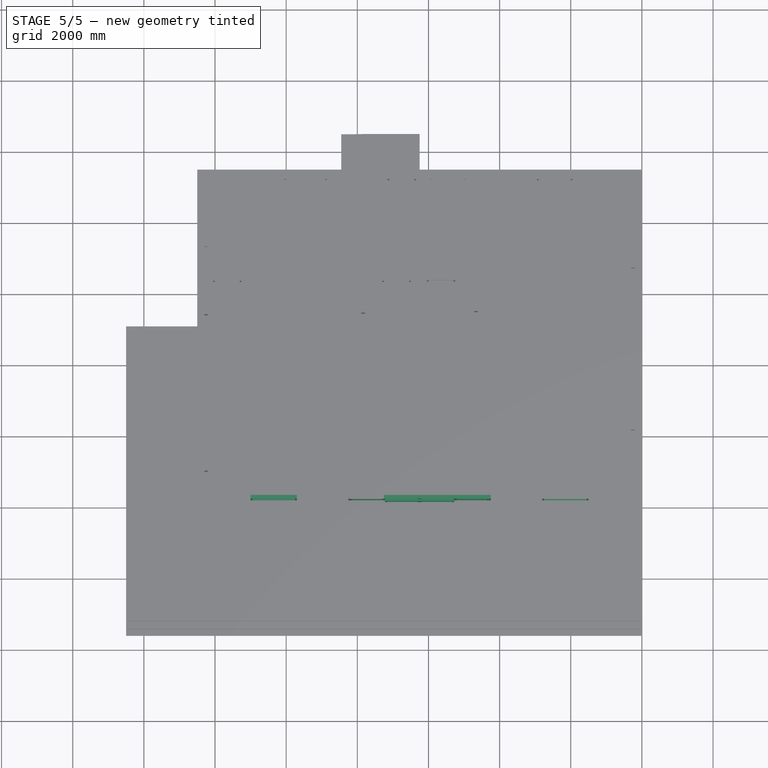
[diagram: stage 5 of 5 — top view after this stage's code; geometry added in this stage tinted green]
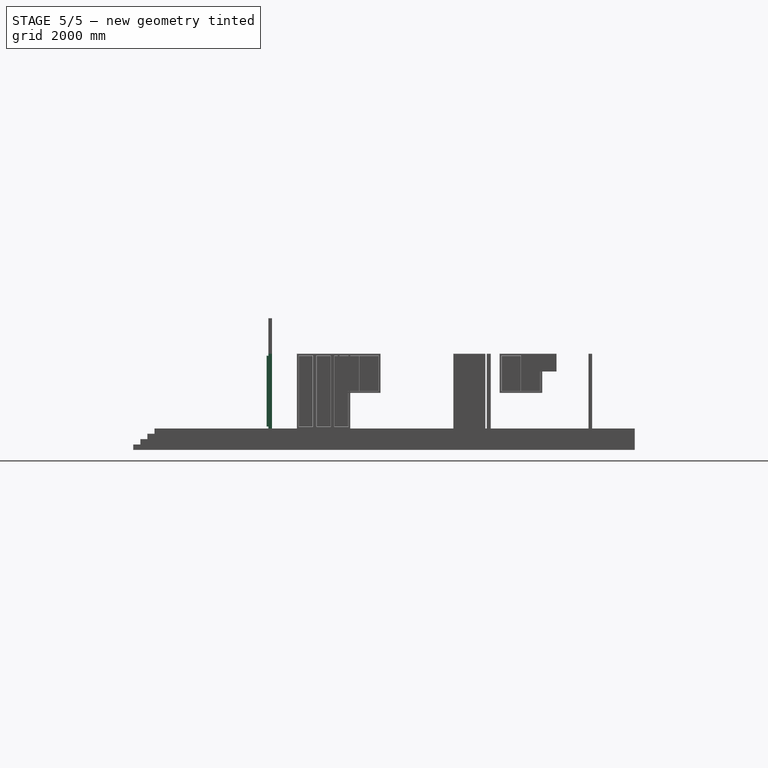
[diagram: stage 5 of 5 — right view after this stage's code; geometry added in this stage tinted green]
FEATURE [App::DocumentObjectGroup] Group  label="WALLS"
  Group = -> [Wall001,Wall]
FEATURE [Part::FeaturePython] Window  # Arch/BIM 170 (typed FeaturePython)
  Area = 2730000
  Base = -> Sketch003
  Frame = 50
  Height = 2100
  HoleDepth = 0
  HoleWire = 0
  HorizontalArea = 0
  Hosts = -> [Wall]
  IfcData = attributes={"GlobalId": {"name": "GlobalId", "type": "IfcGloballyUniqueId", "is_enum": false, "enum_values": []}, "Description": {"... (+1231 chars omitted),+1 more (map truncated)
  IfcType = 170
  LouvreSpacing = 0
  LouvreWidth = 0
  MoveBase = false
  MoveWithHost = true
  Normal = (0,-1,2e-16)
  Opening = 0
  OverallHeight = 2100
  OverallWidth = 1300
  PartitioningType = 0
  PerimeterLength = 0
  PredefinedType = 0
  Preset = 1
  SymbolElevation = false
  SymbolPlan = false
  VerticalArea = 0
  Width = 1300
  WindowParts = OuterFrame | Frame | Wire0,Wire1 | 50.0+V | 0.00+V | Glass | Glass panel | Wire1 | 10.0 | 50.0+V
  expr: OverallHeight = .Height.Value
  expr: OverallWidth = .Width.Value
FEATURE [Part::FeaturePython] Window001  # Arch/BIM 170 (typed FeaturePython)
  Area = 8400000
  Base = -> Sketch004
  Frame = 50
  Height = 2100
  HoleDepth = 0
  HoleWire = 0
  HorizontalArea = 0
  Hosts = -> [Wall]
  IfcData = attributes={"GlobalId": {"name": "GlobalId", "type": "IfcGloballyUniqueId", "is_enum": false, "enum_values": []}, "Description": {"... (+1231 chars omitted),+1 more (map truncated)
  IfcType = 170
  LouvreSpacing = 0
  LouvreWidth = 0
  MoveBase = false
  MoveWithHost = true
  Normal = (0,-1,2e-16)
  Opening = 0
  OverallHeight = 2100
  OverallWidth = 4000
  PartitioningType = 0
  PerimeterLength = 0
  PredefinedType = 0
  Preset = 8
  SymbolElevation = false
  SymbolPlan = false
  VerticalArea = 0
  Width = 4000
  WindowParts = OuterFrame | Frame | Wire0,Wire1 | 50.0+V | 0.00+V | LeftMostFrame | Frame | Wire2,Wire3 | 50.0 | 50.0+V | LeftMostGlass | Glass panel | Wire3 | 5.0 | 75.0+V | LeftFrame | Frame | Wire4,Wire5 | 50.0 | 100.0+V | LeftGlass | Glass panel | Wire5 | 5.0 | 125.0+V | RightFrame | Frame | Wire6,Wire7 | 50.0 | 100.0+V | RightGlass | Glass panel | Wire7 | 5.0 | 125.0+V | RightMostFrame | Frame | Wire8,Wire9 | 50.0 | 50.0+V | RightMostGlass | Glass panel | Wire9 | 5.0 | 75.0+V
  expr: OverallHeight = .Height.Value
  expr: OverallWidth = .Width.Value
FEATURE [Part::FeaturePython] Window002  # Arch/BIM 170 (typed FeaturePython)
  Area = 2730000
  Base = -> Sketch003
  Frame = 50
  Height = 2100
  HoleDepth = 0
  HoleWire = 0
  HorizontalArea = 0
  Hosts = -> [Wall]
  IfcData = attributes={"GlobalId": {"name": "GlobalId", "type": "IfcGloballyUniqueId", "is_enum": false, "enum_values": []}, "Description": {"... (+1231 chars omitted),+1 more (map truncated)
  IfcType = 170
  LouvreSpacing = 0
  LouvreWidth = 0
  MoveBase = false
  MoveWithHost = true
  Normal = (0,-1,2e-16)
  Opening = 0
  OverallHeight = 2100
  OverallWidth = 1300
  PartitioningType = 0
  PerimeterLength = 0
  Placement = pos=(8200,0,0) rot=(0,0,1;0rad)
  PredefinedType = 0
  Preset = 1
  SymbolElevation = false
  SymbolPlan = false
  VerticalArea = 0
  Width = 1300
  WindowParts = OuterFrame | Frame | Wire0,Wire1 | 50.0+V | 0.00+V | Glass | Glass panel | Wire1 | 10.0 | 50.0+V
  expr: OverallHeight = .Height.Value
  expr: OverallWidth = .Width.Value
FEATURE [Part::FeaturePython] Window003  # Arch/BIM 170 (typed FeaturePython)
  Area = 1300000
  Base = -> Sketch005
  Frame = 50
  Height = 1000
  HoleDepth = 0
  HoleWire = 0
  HorizontalArea = 0
  Hosts = -> [Wall]
  IfcData = attributes={"GlobalId": {"name": "GlobalId", "type": "IfcGloballyUniqueId", "is_enum": false, "enum_values": []}, "Description": {"... (+1231 chars omitted),+1 more (map truncated)
  IfcType = 170
  LouvreSpacing = 0
  LouvreWidth = 0
  MoveBase = false
  MoveWithHost = true
  Normal = (0,-1,2e-16)
  Opening = 0
  OverallHeight = 1000
  OverallWidth = 1300
  PartitioningType = 0
  PerimeterLength = 0
  PredefinedType = 0
  Preset = 1
  SymbolElevation = false
  SymbolPlan = false
  VerticalArea = 0
  Width = 1300
  WindowParts = OuterFrame | Frame | Wire0,Wire1 | 50.0+V | 0.00+V | Glass | Glass panel | Wire1 | 10.0 | 50.0+V
  expr: OverallHeight = .Height.Value
  expr: OverallWidth = .Width.Value
FEATURE [Part::FeaturePython] Window004  # Arch/BIM 170 (typed FeaturePython)
  Area = 1000000
  Base = -> Sketch006
  Frame = 50
  Height = 1000
  HoleDepth = 0
  HoleWire = 0
  HorizontalArea = 0
  Hosts = -> [Wall]
  IfcData = attributes={"GlobalId": {"name": "GlobalId", "type": "IfcGloballyUniqueId", "is_enum": false, "enum_values": []}, "Description": {"... (+1231 chars omitted),+1 more (map truncated)
  IfcType = 170
  LouvreSpacing = 0
  LouvreWidth = 0
  MoveBase = false
  MoveWithHost = true
  Normal = (0,-1,2e-16)
  Opening = 0
  OverallHeight = 1000
  OverallWidth = 1000
  PartitioningType = 0
  PerimeterLength = 0
  PredefinedType = 0
  Preset = 1
  SymbolElevation = false
  SymbolPlan = false
  VerticalArea = 0
  Width = 1000
  WindowParts = OuterFrame | Frame | Wire0,Wire1 | 50.0+V | 0.00+V | Glass | Glass panel | Wire1 | 10.0 | 50.0+V
  expr: OverallHeight = .Height.Value
  expr: OverallWidth = .Width.Value
FEATURE [Part::FeaturePython] Window005  # Arch/BIM 170 (typed FeaturePython)
  Area = 1000000
  Base = -> Sketch006
  Frame = 50
  Height = 1000
  HoleDepth = 0
  HoleWire = 0
  HorizontalArea = 0
  Hosts = -> [Wall]
  IfcData = attributes={"GlobalId": {"name": "GlobalId", "type": "IfcGloballyUniqueId", "is_enum": false, "enum_values": []}, "Description": {"... (+1231 chars omitted),+1 more (map truncated)
  IfcType = 170
  LouvreSpacing = 0
  LouvreWidth = 0
  MoveBase = false
  MoveWithHost = true
  Normal = (0,-1,2e-16)
  Opening = 0
  OverallHeight = 1000
  OverallWidth = 1000
  PartitioningType = 0
  PerimeterLength = 0
  Placement = pos=(-1000,-3.979e-13,0) rot=(0,0,1;0rad)
  PredefinedType = 0
  Preset = 1
  SymbolElevation = false
  SymbolPlan = false
  VerticalArea = 0
  Width = 1000
  WindowParts = OuterFrame | Frame | Wire0,Wire1 | 50.0+V | 0.00+V | Glass | Glass panel | Wire1 | 10.0 | 50.0+V
  expr: OverallHeight = .Height.Value
  expr: OverallWidth = .Width.Value
FEATURE [Part::FeaturePython] Window006  # Arch/BIM 170 (typed FeaturePython)
  Area = 1000000
  Base = -> Sketch006
  Frame = 50
  Height = 1000
  HoleDepth = 0
  HoleWire = 0
  HorizontalArea = 0
  Hosts = -> [Wall]
  IfcData = attributes={"GlobalId": {"name": "GlobalId", "type": "IfcGloballyUniqueId", "is_enum": false, "enum_values": []}, "Description": {"... (+1231 chars omitted),+1 more (map truncated)
  IfcType = 170
  LouvreSpacing = 0
  LouvreWidth = 0
  MoveBase = false
  MoveWithHost = true
  Normal = (0,-1,2e-16)
  Opening = 0
  OverallHeight = 1000
  OverallWidth = 1000
  PartitioningType = 0
  PerimeterLength = 0
  Placement = pos=(-2000,-3.979e-13,0) rot=(0,0,1;0rad)
  PredefinedType = 0
  Preset = 1
  SymbolElevation = false
  SymbolPlan = false
  VerticalArea = 0
  Width = 1000
  WindowParts = OuterFrame | Frame | Wire0,Wire1 | 50.0+V | 0.00+V | Glass | Glass panel | Wire1 | 10.0 | 50.0+V
  expr: OverallHeight = .Height.Value
  expr: OverallWidth = .Width.Value
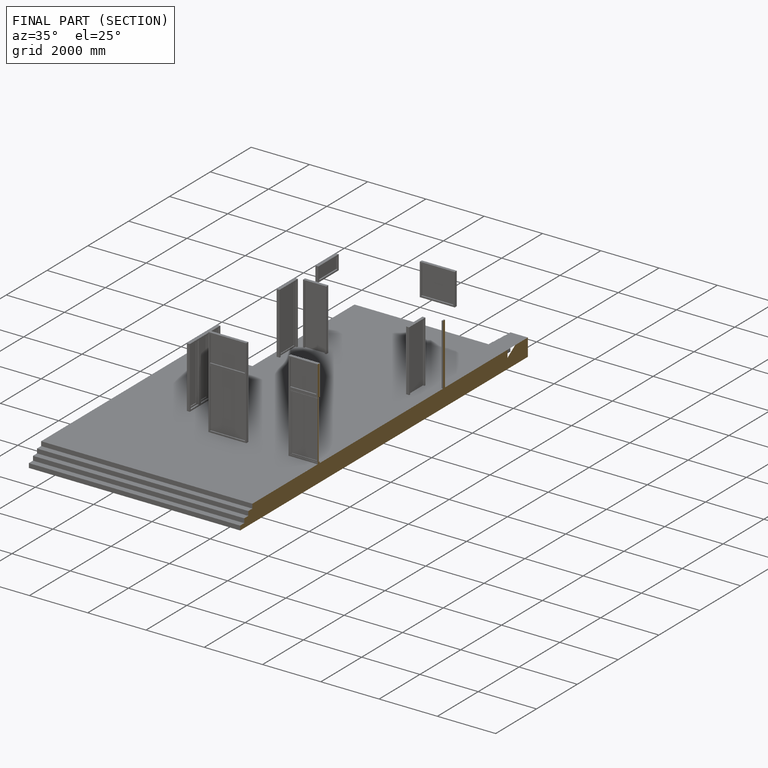
[diagram: finished part — half-section view (interior)]
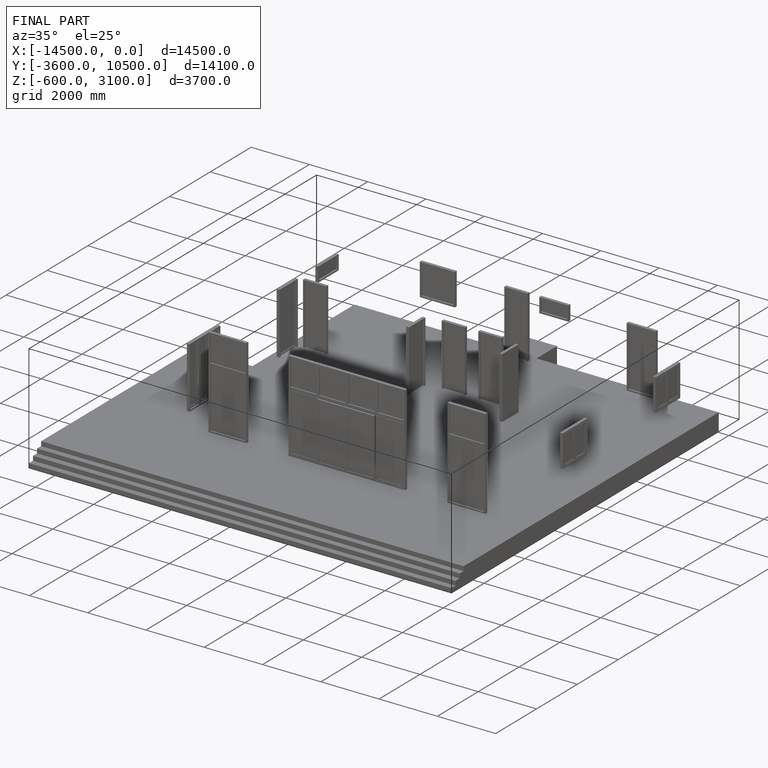
[diagram: finished part — iso view with bounding-box wireframe]
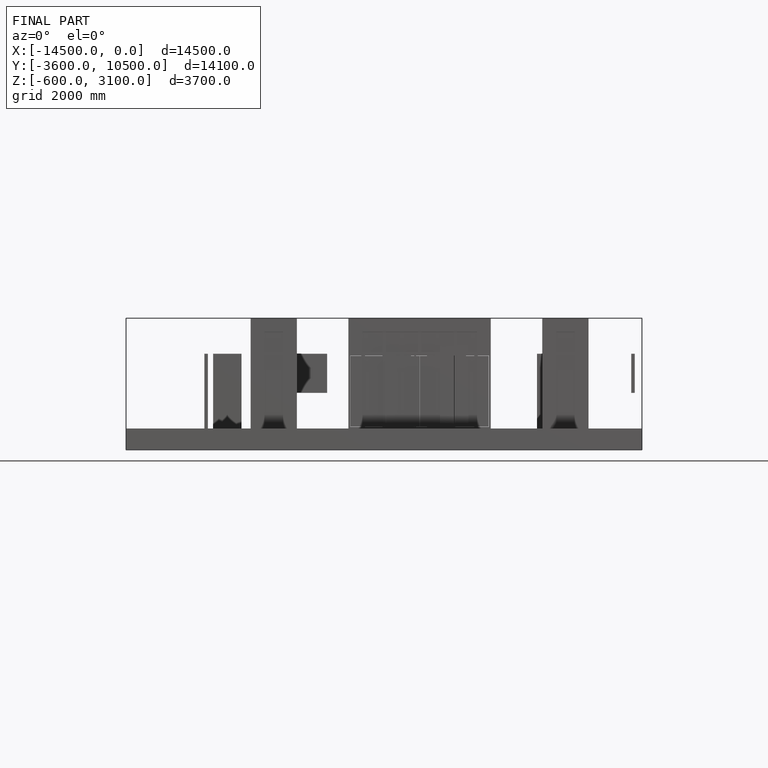
[diagram: finished part — front view with bounding-box wireframe]
